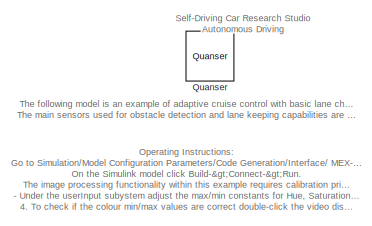
[diagram: root canvas - part 1/4, top left region]
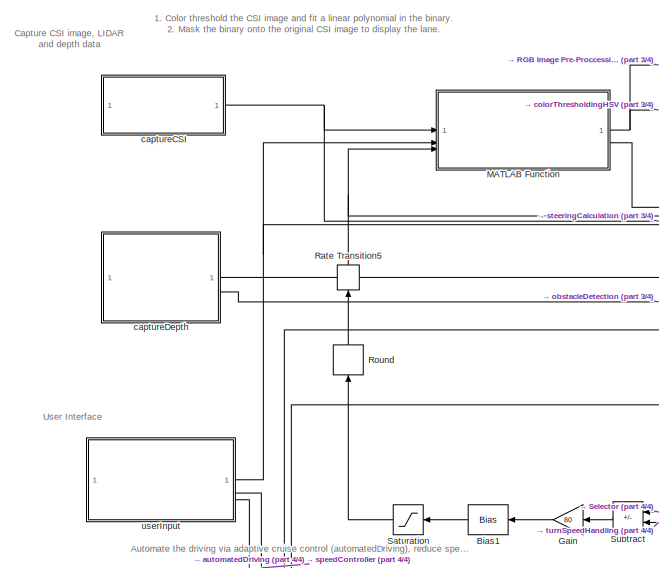
[diagram: root canvas - part 2/4, middle left region]
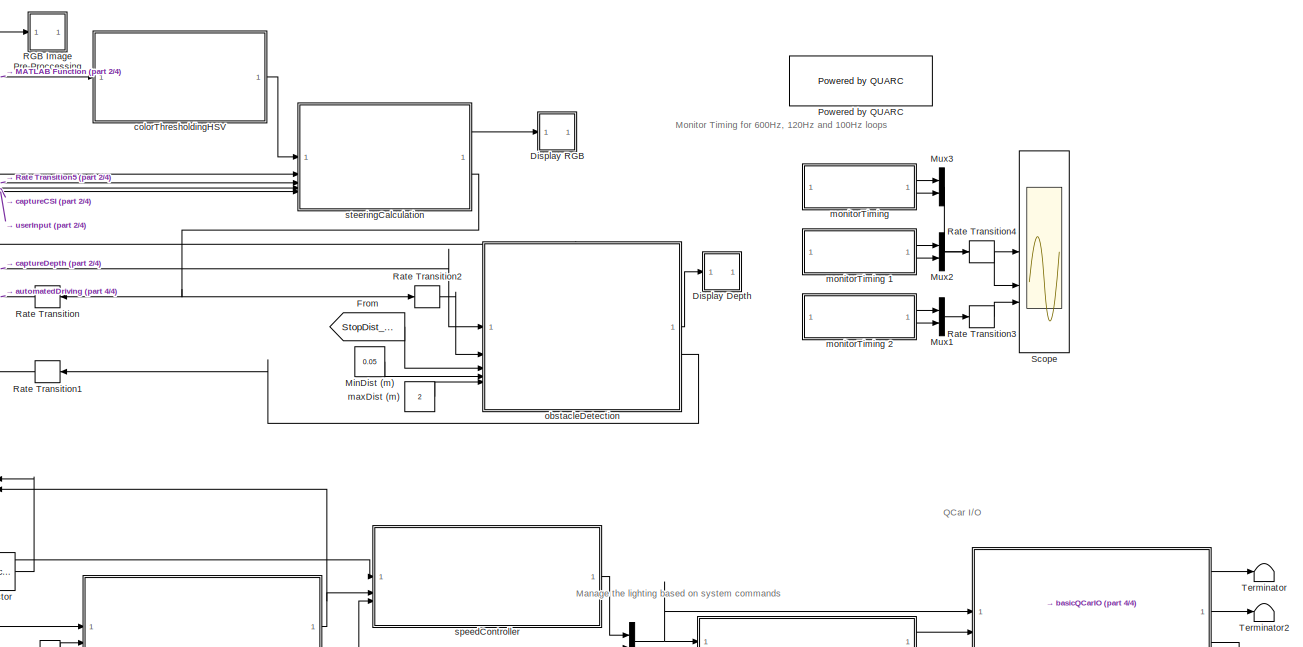
[diagram: root canvas - part 3/4, middle right region]
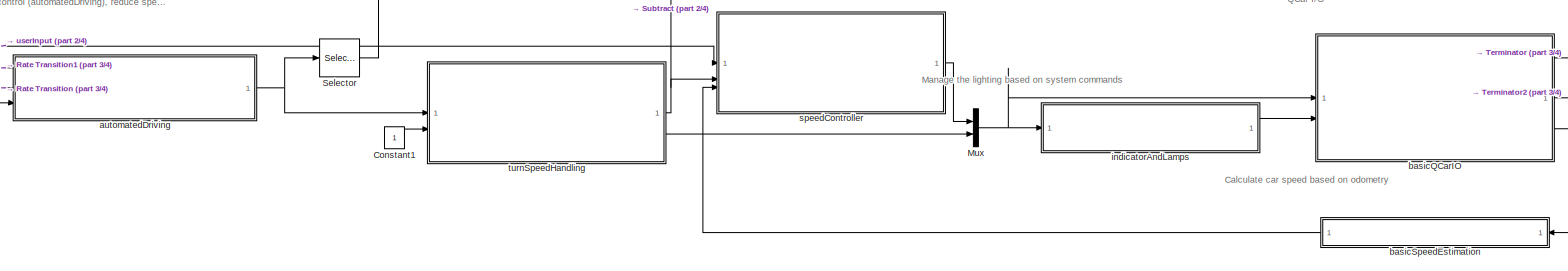
[diagram: root canvas - part 4/4, full width, bottom band]
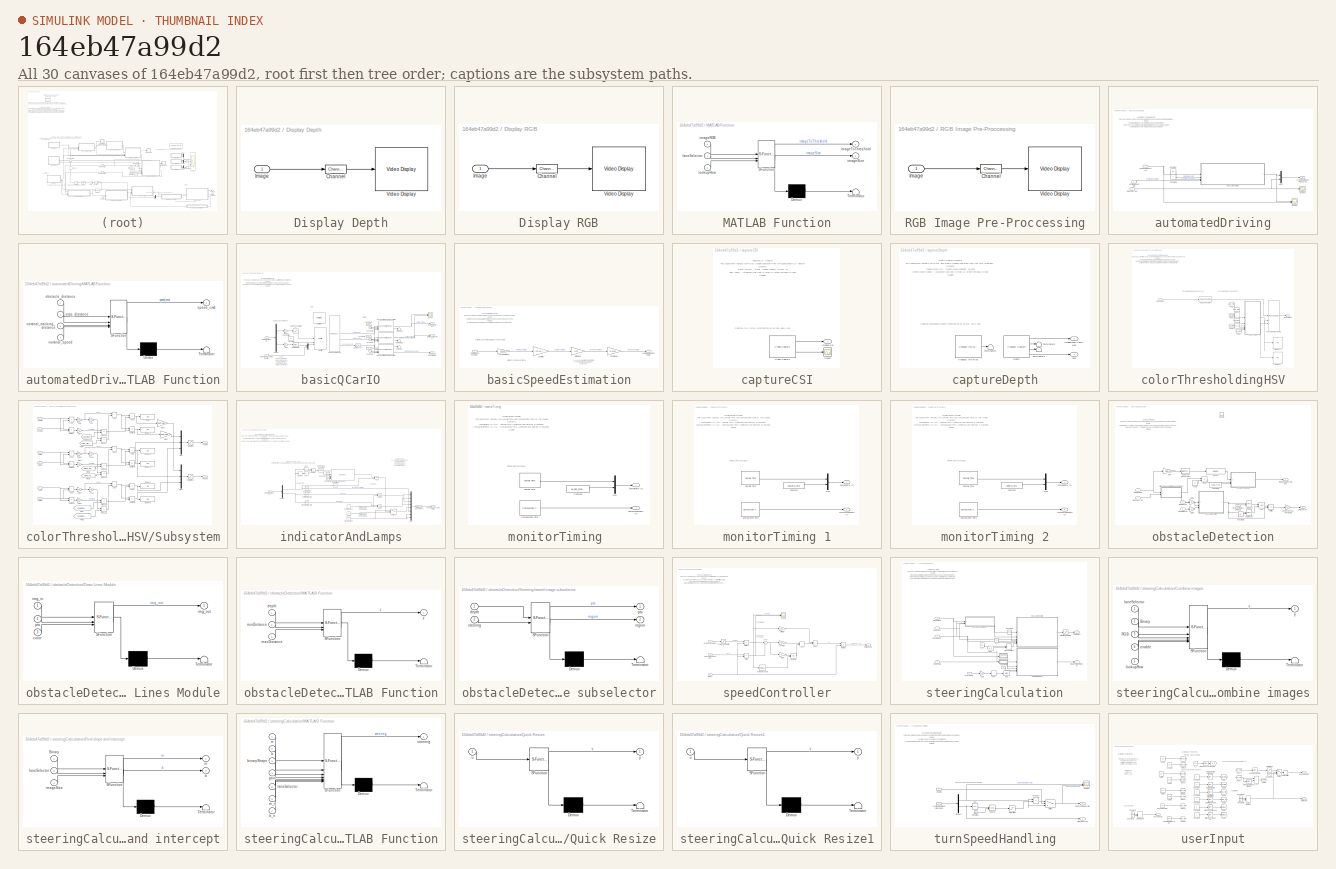
[diagram: thumbnail index - all 30 canvases of the model, root first then tree order]
MODEL slx_164eb47a99d2
KIND model
CONFIG AbsTol = auto
CONFIG EnableMultiTasking = on
CONFIG FixedStep = 1/100
CONFIG MaxStep = auto
CONFIG MinStep = auto
CONFIG RelTol = 1e-3
CONFIG SampleTimeConstraint = Unconstrained
CONFIG SolverName = ode2
CONFIG StartTime = 0.0
CONFIG StopTime = inf
WORKSPACE source: mxarray member
WORKSPACE camera_rate: Simulink.Parameter (value not decoded)
WORKSPACE depth_rate: Simulink.Parameter (value not decoded)
BLOCK [Bias] Bias1
  Bias = 220
  SaturateOnIntegerOverflow = off
BLOCK [Constant] Constant1
BLOCK [SubSystem] Display Depth
BLOCK [Reference] Display Depth/Channel  REF=quarc_library/Signal Routing/Channel
  SourceBlock = quarc_library/Signal Routing/Channel
  SourceProductName = QUARC Targets
  SourceType = Channel
BLOCK [Inport] Display Depth/Image
BLOCK [Reference] Display Depth/Video Display  REF=quarc_library/Multimedia/Video Display
  SourceBlock = quarc_library/Multimedia/Video Display
  SourceProductName = QUARC Targets
  SourceType = Video Display
  Tag = QCar1_autonomous_driving_car_example2/Display Depth/Video Display
  UserDataPersistent = on
BLOCK [SubSystem] Display RGB
BLOCK [Reference] Display RGB/Channel  REF=quarc_library/Signal Routing/Channel
  SourceBlock = quarc_library/Signal Routing/Channel
  SourceProductName = QUARC Targets
  SourceType = Channel
BLOCK [Inport] Display RGB/Image
BLOCK [Reference] Display RGB/Video Display  REF=quarc_library/Multimedia/Video Display
  SourceBlock = quarc_library/Multimedia/Video Display
  SourceProductName = QUARC Targets
  SourceType = Video Display
  Tag = QCar1_autonomous_driving_car_example2/Display RGB/Video Display
  UserDataPersistent = on
BLOCK [From] From
  GotoTag = StopDist_des
  TagVisibility = global
BLOCK [Gain] Gain
  Gain = 80
  NameLocation = top
BLOCK [SubSystem] MATLAB Function
  ErrorFcn = Stateflow.Translate.translate
  PermitHierarchicalResolution = ExplicitOnly
  SFBlockType = MATLAB Function
  TreatAsAtomicUnit = on
BLOCK [Demux] MATLAB Function/ Demux 
  Outputs = 1
BLOCK [S-Function] MATLAB Function/ SFunction 
  EnableBusSupport = on
  FunctionName = sf_sfun
  PortCounts = [3 3]
  SFcnIsStateOwnerBlock = off
  SFunctionDeploymentMode = off
  Tag = Stateflow S-Function 11
BLOCK [Terminator] MATLAB Function/ Terminator 
BLOCK [Inport] MATLAB Function/imageRGB
BLOCK [Outport] MATLAB Function/imageSize
  Port = 2
  VectorParamsAs1DForOutWhenUnconnected = off
BLOCK [Outport] MATLAB Function/imageToThreshold
  VectorParamsAs1DForOutWhenUnconnected = off
BLOCK [Inport] MATLAB Function/laneSelector
  Port = 2
BLOCK [Inport] MATLAB Function/lookupRow
  Port = 3
BLOCK [Constant] MinDist (m)
  Value = 0.05
BLOCK [Mux] Mux
  DisplayOption = bar
  Inputs = 2
BLOCK [Mux] Mux1
  DisplayOption = bar
  Inputs = 2
BLOCK [Mux] Mux2
  DisplayOption = bar
  Inputs = 2
BLOCK [Mux] Mux3
  DisplayOption = bar
  Inputs = 2
BLOCK [Reference] Powered by QUARC  REF=quarc_library/Logos/Powered by QUARC
  SourceBlock = quarc_library/Logos/Powered by QUARC
  SourceProductName = QUARC Targets
  SourceType = Powered by QUARC
BLOCK [Reference] Quanser  REF=quarc_library/Logos/Quanser
  SourceBlock = quarc_library/Logos/Quanser
  SourceProductName = QUARC Targets
  SourceType = Powered by Quanser
BLOCK [SubSystem] RGB Image Pre-Proccessing
BLOCK [Reference] RGB Image Pre-Proccessing/Channel  REF=quarc_library/Signal Routing/Channel
  SourceBlock = quarc_library/Signal Routing/Channel
  SourceProductName = QUARC Targets
  SourceType = Channel
BLOCK [Inport] RGB Image Pre-Proccessing/Image
BLOCK [Reference] RGB Image Pre-Proccessing/Video Display  REF=quarc_library/Multimedia/Video Display
  SourceBlock = quarc_library/Multimedia/Video Display
  SourceProductName = QUARC Targets
  SourceType = Video Display
  Tag = QCar1_autonomous_driving_car_example2/RGB Image \nPre-Proccessing/Video Display
  UserDataPersistent = on
BLOCK [RateTransition] Rate Transition
BLOCK [RateTransition] Rate Transition1
BLOCK [RateTransition] Rate Transition2
  Deterministic = off
BLOCK [RateTransition] Rate Transition3
  NameLocation = top
BLOCK [RateTransition] Rate Transition4
  NameLocation = top
BLOCK [RateTransition] Rate Transition5
  NameLocation = left
BLOCK [Rounding] Round
  NameLocation = right
  Operator = round
BLOCK [Saturate] Saturation
  LowerLimit = 220
  UpperLimit = 300
BLOCK [Scope] Scope
  Floating = off
  NumInputPorts = 3
  ScopeSpecificationString = Simulink.scopes.TimeScopeBlockCfg('CurrentConfiguration', extmgr.ConfigurationSet(extmgr.Configuration('Core','General UI',true),extmgr.Configuration('Core','Source UI',true),extmgr.Configuration('Sources','WiredSimulink',true,'DataLoggingVariableName','ScopeData1'),extmgr.Configuration('Visuals','Time Domain',true,'SerializedDisplays',{struct('MinYLimReal','-0.00084','MaxYLimReal','0.00516','YLab...<+2758ch>
BLOCK [Selector] Selector
  IndexOptions = Index vector (dialog)
  Indices = [1]
  InputPortWidth = 2
  OutputSizes = 1
BLOCK [Sum] Subtract
  IconShape = rectangular
  Inputs = +-
  NameLocation = top
BLOCK [Terminator] Terminator
BLOCK [Terminator] Terminator2
BLOCK [SubSystem] automatedDriving
BLOCK [Constant] automatedDriving/Constant
  Value = 0.4
BLOCK [Constant] automatedDriving/Constant2
BLOCK [SubSystem] automatedDriving/MATLAB Function
  ErrorFcn = Stateflow.Translate.translate
  PermitHierarchicalResolution = ExplicitOnly
  SFBlockType = MATLAB Function
  TreatAsAtomicUnit = on
BLOCK [Demux] automatedDriving/MATLAB Function/ Demux 
  Outputs = 1
BLOCK [S-Function] automatedDriving/MATLAB Function/ SFunction 
  EnableBusSupport = on
  FunctionName = sf_sfun
  PortCounts = [4 2]
  SFcnIsStateOwnerBlock = off
  SFunctionDeploymentMode = off
  Tag = Stateflow S-Function 10
BLOCK [Terminator] automatedDriving/MATLAB Function/ Terminator 
BLOCK [Inport] automatedDriving/MATLAB Function/nominal_speed
  Port = 4
BLOCK [Inport] automatedDriving/MATLAB Function/nominal_tracking_distance
  Port = 3
BLOCK [Inport] automatedDriving/MATLAB Function/obstacle_distance
BLOCK [Outport] automatedDriving/MATLAB Function/speed_cmd
  VectorParamsAs1DForOutWhenUnconnected = off
BLOCK [Inport] automatedDriving/MATLAB Function/stop_distance
  Port = 2
BLOCK [Mux] automatedDriving/Mux1
  DisplayOption = bar
  Inputs = 2
BLOCK [Scope] automatedDriving/Scope
  Floating = off
  NumInputPorts = 2
  ScopeSpecificationString = Simulink.scopes.TimeScopeBlockCfg('CurrentConfiguration', extmgr.ConfigurationSet(extmgr.Configuration('Core','General UI',true),extmgr.Configuration('Core','Source UI',true),extmgr.Configuration('Sources','WiredSimulink',true,'DataLoggingVariableName','ScopeData1'),extmgr.Configuration('Visuals','Time Domain',true,'SerializedDisplays',{struct('MinYLimReal','-0.06597','MaxYLimReal','1.21757','YLab...<+1434ch>
BLOCK [Scope] automatedDriving/Scope2
  Floating = off
  NumInputPorts = 1
  ScopeSpecificationString = Simulink.scopes.TimeScopeBlockCfg('CurrentConfiguration', extmgr.ConfigurationSet(extmgr.Configuration('Core','General UI',true),extmgr.Configuration('Core','Source UI',true),extmgr.Configuration('Sources','WiredSimulink',true,'DataLoggingVariableName','ScopeData2'),extmgr.Configuration('Visuals','Time Domain',true,'SerializedDisplays',{struct('MinYLimReal','-0.625','MaxYLimReal','0.625','YLabelRe...<+1418ch>
BLOCK [Inport] automatedDriving/nominalSpeed (m//s)
  Port = 3
BLOCK [Inport] automatedDriving/obstacleDistance (m)
BLOCK [Inport] automatedDriving/steering (rad)
  Port = 2
BLOCK [Outport] automatedDriving/systemCommand (m//s, rad) [2]
  VectorParamsAs1DForOutWhenUnconnected = off
BLOCK [SubSystem] basicQCarIO
BLOCK [Constant] basicQCarIO/Constant1
BLOCK [Constant] basicQCarIO/Constant2
  Value = 25
BLOCK [Constant] basicQCarIO/Constant3
BLOCK [Constant] basicQCarIO/Constant4
  Value = 100
BLOCK [Constant] basicQCarIO/Constant5
BLOCK [Constant] basicQCarIO/Constant6
  Value = 100
BLOCK [Demux] basicQCarIO/Demux
  Outputs = 2
BLOCK [Gain] basicQCarIO/Gain
  Gain = -1
BLOCK [Reference] basicQCarIO/HIL Initialize  REF=quarc_library/Data Acquisition/Generic/Configuration/HIL Initialize
  AttributesFormatString = %<object_name> (%<board_type>-%<board_number>)
  SourceBlock = quarc_library/Data Acquisition/Generic/Configuration/HIL Initialize
  SourceProductName = QUARC Targets
  SourceType = HIL Initialize
  UserDataPersistent = on
BLOCK [Reference] basicQCarIO/HIL Read Timebase  REF=quarc_library/Data Acquisition/Generic/Timebases/HIL Read
Timebase
  AttributesFormatString = (%<object_name>)
  SourceBlock = quarc_library/Data Acquisition/Generic/Timebases/HIL Read\nTimebase
  SourceProductName = QUARC Targets
  SourceType = HIL Read Timebase
  UserDataPersistent = on
BLOCK [Reference] basicQCarIO/HIL Write  REF=quarc_library/Data Acquisition/Generic/Immediate I//O/HIL Write
  AttributesFormatString = (%<object_name>)
  SourceBlock = quarc_library/Data Acquisition/Generic/Immediate I//O/HIL Write
  SourceProductName = QUARC Targets
  SourceType = HIL Write
  UserDataPersistent = on
BLOCK [Mux] basicQCarIO/Mux
  DisplayOption = bar
  Inputs = 2
BLOCK [Scope] basicQCarIO/Scope
  Floating = off
  NumInputPorts = 2
  ScopeSpecificationString = Simulink.scopes.TimeScopeBlockCfg('CurrentConfiguration', extmgr.ConfigurationSet(extmgr.Configuration('Core','General UI',true),extmgr.Configuration('Core','Source UI',true),extmgr.Configuration('Sources','WiredSimulink',true,'DataLoggingVariableName','ScopeData4'),extmgr.Configuration('Visuals','Time Domain',true,'SerializedDisplays',{struct('MinYLimReal','-1.03564','MaxYLimReal','12.37845','YLa...<+1450ch>
BLOCK [Reference] basicQCarIO/Second-Order Low-Pass Filter  REF=quarc_library/Continuous/Second-Order
Low-Pass Filter
  SourceBlock = quarc_library/Continuous/Second-Order\nLow-Pass Filter
  SourceProductName = QUARC Targets
  SourceType = Second-Order Low-Pass Filter
BLOCK [Reference] basicQCarIO/Second-Order Low-Pass Filter1  REF=quarc_library/Continuous/Second-Order
Low-Pass Filter
  SourceBlock = quarc_library/Continuous/Second-Order\nLow-Pass Filter
  SourceProductName = QUARC Targets
  SourceType = Second-Order Low-Pass Filter
BLOCK [Reference] basicQCarIO/Second-Order Low-Pass Filter2  REF=quarc_library/Continuous/Second-Order
Low-Pass Filter
  SourceBlock = quarc_library/Continuous/Second-Order\nLow-Pass Filter
  SourceProductName = QUARC Targets
  SourceType = Second-Order Low-Pass Filter
BLOCK [Bias] basicQCarIO/Steering Bias
  Bias = 0.0
  SaturateOnIntegerOverflow = off
BLOCK [Terminator] basicQCarIO/Terminator
BLOCK [Terminator] basicQCarIO/Terminator1
BLOCK [Terminator] basicQCarIO/Terminator2
BLOCK [Reference] basicQCarIO/Unwrap 2^24  REF=quarc_library/Discontinuities/Inverse
Modulus
  SourceBlock = quarc_library/Discontinuities/Inverse\nModulus
  SourceProductName = QUARC Targets
  SourceType = Inverse Modulus
BLOCK [Outport] basicQCarIO/batteryVoltage (V) [1]
  Port = 2
  VectorParamsAs1DForOutWhenUnconnected = off
BLOCK [Constant] basicQCarIO/coast ON
  Value = 0
BLOCK [Saturate] basicQCarIO/command saturation
  LowerLimit = -0.25
  NameLocation = top
  UpperLimit = 0.25
BLOCK [Gain] basicQCarIO/direction convention
  Gain = -1
  NameLocation = top
BLOCK [Inport] basicQCarIO/indicatorAndLamps (bool) [8]
  Port = 2
BLOCK [Inport] basicQCarIO/motorCmd (%, rad) [2]
BLOCK [Outport] basicQCarIO/motorCurrent (A) [1]
  VectorParamsAs1DForOutWhenUnconnected = off
BLOCK [Outport] basicQCarIO/motorSpeed (counts//s) [1]
  Port = 3
  VectorParamsAs1DForOutWhenUnconnected = off
BLOCK [SubSystem] basicSpeedEstimation
  NameLocation = top
BLOCK [Gain] basicSpeedEstimation/counts to rotations
  Gain = 1/720/4
BLOCK [Gain] basicSpeedEstimation/gear ratios
  Gain = (13*19)/(70*37)
BLOCK [Outport] basicSpeedEstimation/longitudinalCarSpeed (m//s)
  VectorParamsAs1DForOutWhenUnconnected = off
BLOCK [Inport] basicSpeedEstimation/motorSpeed (counts//s)
BLOCK [Gain] basicSpeedEstimation/rot//s to rad//s
  Gain = 2*pi
BLOCK [Gain] basicSpeedEstimation/wheel radius
  Gain = 0.0342
BLOCK [SubSystem] captureCSI
BLOCK [Scope] captureCSI/Scope
  Floating = off
  NumInputPorts = 1
  ScopeSpecificationString = Simulink.scopes.TimeScopeBlockCfg('CurrentConfiguration', extmgr.ConfigurationSet(extmgr.Configuration('Core','General UI',true),extmgr.Configuration('Core','Source UI',true),extmgr.Configuration('Sources','WiredSimulink',true,'DataLoggingVariableName','ScopeData3'),extmgr.Configuration('Visuals','Time Domain',true,'SerializedDisplays',{struct('MinYLimReal','-0.125','MaxYLimReal','1.125','YLabelRe...<+1433ch>
BLOCK [Reference] captureCSI/Video Capture  REF=quarc_library/Multimedia/Video Capture
  SourceBlock = quarc_library/Multimedia/Video Capture
  SourceProductName = QUARC Targets
  SourceType = Video Capture
BLOCK [Outport] captureCSI/imageRGB
  VectorParamsAs1DForOutWhenUnconnected = off
BLOCK [SubSystem] captureDepth
BLOCK [Reference] captureDepth/Depth  REF=quarc_library/Multimedia/Video3D Capture
  SourceBlock = quarc_library/Multimedia/Video3D Capture
  SourceProductName = QUARC Targets
  SourceType = Video3D Capture
  UserDataPersistent = on
BLOCK [Terminator] captureDepth/Terminator2
BLOCK [Terminator] captureDepth/Terminator3
BLOCK [Terminator] captureDepth/Terminator4
BLOCK [Reference] captureDepth/Video3D Initialize  REF=quarc_library/Multimedia/Video3D Initialize
  SourceBlock = quarc_library/Multimedia/Video3D Initialize
  SourceProductName = QUARC Targets
  SourceType = Video3D Initialize
BLOCK [Outport] captureDepth/imageDepth [360 x 640]
  Port = 2
  VectorParamsAs1DForOutWhenUnconnected = off
BLOCK [Outport] captureDepth/new
  VectorParamsAs1DForOutWhenUnconnected = off
BLOCK [SubSystem] colorThresholdingHSV
  NameLocation = top
BLOCK [Display] colorThresholdingHSV/Display1
  Decimation = 1
BLOCK [Display] colorThresholdingHSV/Display2
  Decimation = 1
BLOCK [From] colorThresholdingHSV/From1
  GotoTag = Hue_Min
  TagVisibility = global
BLOCK [From] colorThresholdingHSV/From2
  GotoTag = Hue_Max
  TagVisibility = global
BLOCK [From] colorThresholdingHSV/From3
  GotoTag = Sat_Min
  TagVisibility = global
BLOCK [From] colorThresholdingHSV/From4
  GotoTag = Sat_Max
  TagVisibility = global
BLOCK [From] colorThresholdingHSV/From5
  GotoTag = Val_Min
  TagVisibility = global
BLOCK [From] colorThresholdingHSV/From6
  GotoTag = Val_Max
  TagVisibility = global
BLOCK [Reference] colorThresholdingHSV/HSV Color Thresholding  REF=quarc_library/Image Processing/Generic/Image Compare
  SourceBlock = quarc_library/Image Processing/Generic/Image Compare
  SourceProductName = QUARC Targets
  SourceType = Image Compare
BLOCK [Reference] colorThresholdingHSV/Image Transform  REF=quarc_library/Image Processing/Generic/Image Transform
  AttributesFormatString = (%<algorithm>)
  NameLocation = top
  SourceBlock = quarc_library/Image Processing/Generic/Image Transform
  SourceProductName = QUARC Targets
  SourceType = Image Transform
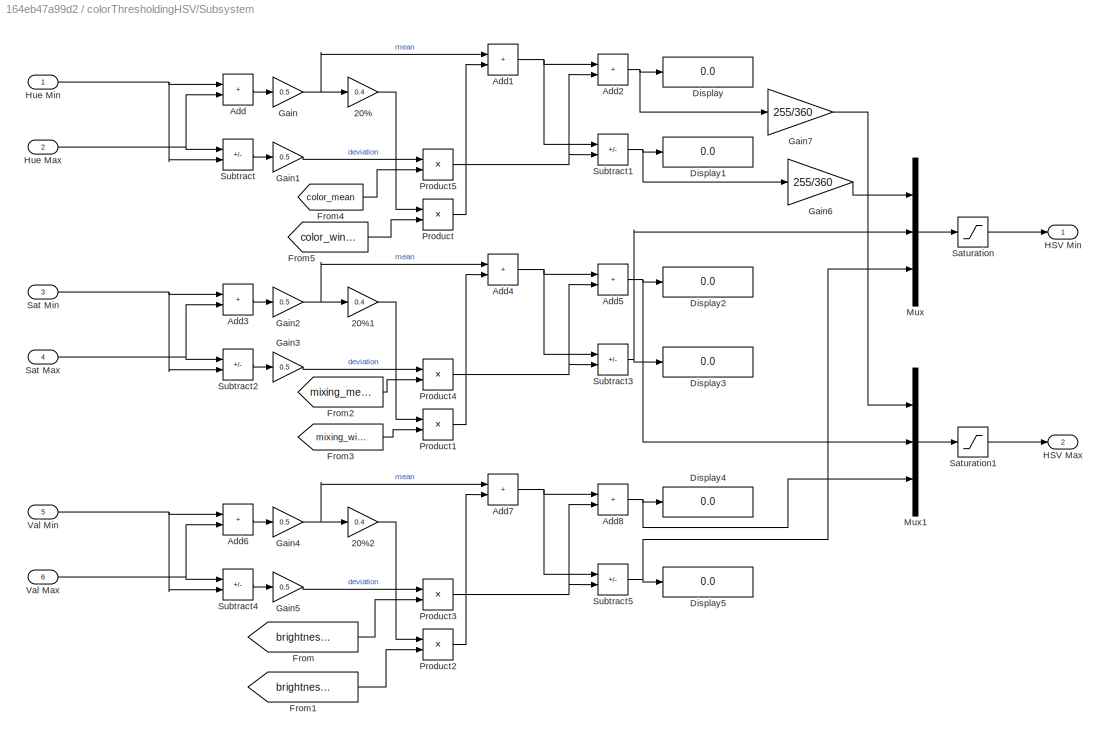
BLOCK [SubSystem] colorThresholdingHSV/Subsystem
BLOCK [Gain] colorThresholdingHSV/Subsystem/20%
  Gain = 0.4
BLOCK [Gain] colorThresholdingHSV/Subsystem/20%1
  Gain = 0.4
BLOCK [Gain] colorThresholdingHSV/Subsystem/20%2
  Gain = 0.4
BLOCK [Sum] colorThresholdingHSV/Subsystem/Add
  IconShape = rectangular
BLOCK [Sum] colorThresholdingHSV/Subsystem/Add1
  IconShape = rectangular
BLOCK [Sum] colorThresholdingHSV/Subsystem/Add2
  IconShape = rectangular
BLOCK [Sum] colorThresholdingHSV/Subsystem/Add3
  IconShape = rectangular
BLOCK [Sum] colorThresholdingHSV/Subsystem/Add4
  IconShape = rectangular
BLOCK [Sum] colorThresholdingHSV/Subsystem/Add5
  IconShape = rectangular
BLOCK [Sum] colorThresholdingHSV/Subsystem/Add6
  IconShape = rectangular
BLOCK [Sum] colorThresholdingHSV/Subsystem/Add7
  IconShape = rectangular
BLOCK [Sum] colorThresholdingHSV/Subsystem/Add8
  IconShape = rectangular
BLOCK [Display] colorThresholdingHSV/Subsystem/Display
  Decimation = 1
BLOCK [Display] colorThresholdingHSV/Subsystem/Display1
  Decimation = 1
BLOCK [Display] colorThresholdingHSV/Subsystem/Display2
  Decimation = 1
BLOCK [Display] colorThresholdingHSV/Subsystem/Display3
  Decimation = 1
BLOCK [Display] colorThresholdingHSV/Subsystem/Display4
  Decimation = 1
BLOCK [Display] colorThresholdingHSV/Subsystem/Display5
  Decimation = 1
BLOCK [From] colorThresholdingHSV/Subsystem/From
  GotoTag = brightness_mean
  TagVisibility = global
BLOCK [From] colorThresholdingHSV/Subsystem/From1
  GotoTag = brightness_window
  TagVisibility = global
BLOCK [From] colorThresholdingHSV/Subsystem/From2
  GotoTag = mixing_mean
  TagVisibility = global
BLOCK [From] colorThresholdingHSV/Subsystem/From3
  GotoTag = mixing_window
  TagVisibility = global
BLOCK [From] colorThresholdingHSV/Subsystem/From4
  GotoTag = color_mean
  TagVisibility = global
BLOCK [From] colorThresholdingHSV/Subsystem/From5
  GotoTag = color_window
  TagVisibility = global
BLOCK [Gain] colorThresholdingHSV/Subsystem/Gain
  Gain = 0.5
BLOCK [Gain] colorThresholdingHSV/Subsystem/Gain1
  Gain = 0.5
BLOCK [Gain] colorThresholdingHSV/Subsystem/Gain2
  Gain = 0.5
BLOCK [Gain] colorThresholdingHSV/Subsystem/Gain3
  Gain = 0.5
BLOCK [Gain] colorThresholdingHSV/Subsystem/Gain4
  Gain = 0.5
BLOCK [Gain] colorThresholdingHSV/Subsystem/Gain5
  Gain = 0.5
BLOCK [Gain] colorThresholdingHSV/Subsystem/Gain6
  Gain = 255/360
BLOCK [Gain] colorThresholdingHSV/Subsystem/Gain7
  Gain = 255/360
BLOCK [Outport] colorThresholdingHSV/Subsystem/HSV Max
  Port = 2
  VectorParamsAs1DForOutWhenUnconnected = off
BLOCK [Outport] colorThresholdingHSV/Subsystem/HSV Min
  VectorParamsAs1DForOutWhenUnconnected = off
BLOCK [Inport] colorThresholdingHSV/Subsystem/Hue Max
  Port = 2
BLOCK [Inport] colorThresholdingHSV/Subsystem/Hue Min
BLOCK [Mux] colorThresholdingHSV/Subsystem/Mux
  DisplayOption = bar
  Inputs = 3
BLOCK [Mux] colorThresholdingHSV/Subsystem/Mux1
  DisplayOption = bar
  Inputs = 3
BLOCK [Product] colorThresholdingHSV/Subsystem/Product
BLOCK [Product] colorThresholdingHSV/Subsystem/Product1
BLOCK [Product] colorThresholdingHSV/Subsystem/Product2
BLOCK [Product] colorThresholdingHSV/Subsystem/Product3
BLOCK [Product] colorThresholdingHSV/Subsystem/Product4
BLOCK [Product] colorThresholdingHSV/Subsystem/Product5
BLOCK [Inport] colorThresholdingHSV/Subsystem/Sat Max
  Port = 4
BLOCK [Inport] colorThresholdingHSV/Subsystem/Sat Min
  Port = 3
BLOCK [Saturate] colorThresholdingHSV/Subsystem/Saturation
  LowerLimit = [0 0 0]
  UpperLimit = [255 255 255]
BLOCK [Saturate] colorThresholdingHSV/Subsystem/Saturation1
  LowerLimit = [0 0 0]
  UpperLimit = [255 255 255]
BLOCK [Sum] colorThresholdingHSV/Subsystem/Subtract
  IconShape = rectangular
  Inputs = +-
BLOCK [Sum] colorThresholdingHSV/Subsystem/Subtract1
  IconShape = rectangular
  Inputs = +-
BLOCK [Sum] colorThresholdingHSV/Subsystem/Subtract2
  IconShape = rectangular
  Inputs = +-
BLOCK [Sum] colorThresholdingHSV/Subsystem/Subtract3
  IconShape = rectangular
  Inputs = +-
BLOCK [Sum] colorThresholdingHSV/Subsystem/Subtract4
  IconShape = rectangular
  Inputs = +-
BLOCK [Sum] colorThresholdingHSV/Subsystem/Subtract5
  IconShape = rectangular
  Inputs = +-
BLOCK [Inport] colorThresholdingHSV/Subsystem/Val Max
  Port = 6
BLOCK [Inport] colorThresholdingHSV/Subsystem/Val Min
  Port = 5
BLOCK [Outport] colorThresholdingHSV/imageBinary
  VectorParamsAs1DForOutWhenUnconnected = off
BLOCK [Inport] colorThresholdingHSV/imageRGB
BLOCK [SubSystem] indicatorAndLamps
BLOCK [Logic] indicatorAndLamps/AND1
  AllPortsSameDT = off
  IconShape = distinctive
  OutDataTypeStr = boolean
BLOCK [Logic] indicatorAndLamps/AND2
  AllPortsSameDT = off
  IconShape = distinctive
  Operator = OR
  OutDataTypeStr = boolean
BLOCK [Logic] indicatorAndLamps/AND3
  AllPortsSameDT = off
  IconShape = distinctive
  OutDataTypeStr = boolean
BLOCK [Abs] indicatorAndLamps/Abs
  SaturateOnIntegerOverflow = off
BLOCK [Abs] indicatorAndLamps/Abs1
  SaturateOnIntegerOverflow = off
BLOCK [Reference] indicatorAndLamps/Compare To Constant1  REF=simulink/Logic and Bit
Operations/Compare
To Constant
  SourceBlock = simulink/Logic and Bit\nOperations/Compare\nTo Constant
  SourceType = Compare To Constant
BLOCK [Reference] indicatorAndLamps/Compare To Constant2  REF=simulink/Logic and Bit
Operations/Compare
To Constant
  SourceBlock = simulink/Logic and Bit\nOperations/Compare\nTo Constant
  SourceType = Compare To Constant
BLOCK [Reference] indicatorAndLamps/Compare To Constant3  REF=simulink/Logic and Bit
Operations/Compare
To Constant
  SourceBlock = simulink/Logic and Bit\nOperations/Compare\nTo Constant
  SourceType = Compare To Constant
BLOCK [Constant] indicatorAndLamps/Constant
  Value = 0
BLOCK [Constant] indicatorAndLamps/Constant1
BLOCK [Constant] indicatorAndLamps/Constant2
  Value = 5
BLOCK [DataTypeConversion] indicatorAndLamps/Data Type Conversion
  RndMeth = Floor
  SaturateOnIntegerOverflow = off
BLOCK [DataTypeConversion] indicatorAndLamps/Data Type Conversion1
  RndMeth = Floor
  SaturateOnIntegerOverflow = off
BLOCK [DataTypeConversion] indicatorAndLamps/Data Type Conversion2
  RndMeth = Floor
  SaturateOnIntegerOverflow = off
BLOCK [Demux] indicatorAndLamps/Demux
  Outputs = 2
BLOCK [Reference] indicatorAndLamps/Left Steering Limit  REF=simulink/Logic and Bit
Operations/Compare
To Constant
  SourceBlock = simulink/Logic and Bit\nOperations/Compare\nTo Constant
  SourceType = Compare To Constant
BLOCK [Constant] indicatorAndLamps/Light Off
  OutDataTypeStr = boolean
  Value = 0
BLOCK [Memory] indicatorAndLamps/Memory
BLOCK [Mux] indicatorAndLamps/Mux
  DisplayOption = bar
  Inputs = 8
BLOCK [Reference] indicatorAndLamps/One Shot  REF=quarc_library/Discontinuities/One Shot
  SourceBlock = quarc_library/Discontinuities/One Shot
  SourceProductName = QUARC Targets
  SourceType = One Shot
BLOCK [DiscretePulseGenerator] indicatorAndLamps/Pulsing Light
  Period = 0.5/qc_get_step_size
  PulseWidth = 0.5/2/qc_get_step_size
  SampleTime = qc_get_step_size
BLOCK [Reference] indicatorAndLamps/Right Steering Limit  REF=simulink/Logic and Bit
Operations/Compare
To Constant
  SourceBlock = simulink/Logic and Bit\nOperations/Compare\nTo Constant
  SourceType = Compare To Constant
BLOCK [Constant] indicatorAndLamps/Steady Light
  OutDataTypeStr = boolean
BLOCK [Sum] indicatorAndLamps/Subtract
  IconShape = rectangular
  Inputs = +-
BLOCK [Switch] indicatorAndLamps/Switch2
  Criteria = u2 > Threshold
  InputSameDT = off
  SaturateOnIntegerOverflow = off
BLOCK [Outport] indicatorAndLamps/indicatorsAndLamps (%) [8]
  VectorParamsAs1DForOutWhenUnconnected = off
BLOCK [Inport] indicatorAndLamps/motorCmd (%, rad) [2]
BLOCK [Constant] maxDist (m)
  Value = 2
BLOCK [SubSystem] monitorTiming 
BLOCK [Reference] monitorTiming /Computation Time  REF=quarc_library/Sources/Time/Computation Time
  SourceBlock = quarc_library/Sources/Time/Computation Time
  SourceProductName = QUARC Targets
  SourceType = Computation Time
BLOCK [Constant] monitorTiming /Constant
  SampleTime = -1
  Value = qc_get_step_size
BLOCK [Mux] monitorTiming /Mux
  DisplayOption = bar
  Inputs = 2
BLOCK [Reference] monitorTiming /Sample Time  REF=quarc_library/Sources/Time/Sample Time
  Priority = -99
  SourceBlock = quarc_library/Sources/Time/Sample Time
  SourceProductName = QUARC Targets
  SourceType = Sample Time
BLOCK [Outport] monitorTiming /computationTime (s)
  Port = 2
  VectorParamsAs1DForOutWhenUnconnected = off
BLOCK [Outport] monitorTiming /sampleTime (s)
  VectorParamsAs1DForOutWhenUnconnected = off
BLOCK [SubSystem] monitorTiming 1
BLOCK [Reference] monitorTiming 1/Computation Time  REF=quarc_library/Sources/Time/Computation Time
  SourceBlock = quarc_library/Sources/Time/Computation Time
  SourceProductName = QUARC Targets
  SourceType = Computation Time
BLOCK [Constant] monitorTiming 1/Constant
  SampleTime = camera_rate
  Value = camera_rate
BLOCK [Mux] monitorTiming 1/Mux
  DisplayOption = bar
  Inputs = 2
BLOCK [Reference] monitorTiming 1/Sample Time  REF=quarc_library/Sources/Time/Sample Time
  Priority = -99
  SourceBlock = quarc_library/Sources/Time/Sample Time
  SourceProductName = QUARC Targets
  SourceType = Sample Time
BLOCK [Outport] monitorTiming 1/computationTime (s)
  Port = 2
  VectorParamsAs1DForOutWhenUnconnected = off
BLOCK [Outport] monitorTiming 1/sampleTime (s)
  VectorParamsAs1DForOutWhenUnconnected = off
BLOCK [SubSystem] monitorTiming 2
BLOCK [Reference] monitorTiming 2/Computation Time  REF=quarc_library/Sources/Time/Computation Time
  SourceBlock = quarc_library/Sources/Time/Computation Time
  SourceProductName = QUARC Targets
  SourceType = Computation Time
BLOCK [Constant] monitorTiming 2/Constant
  SampleTime = depth_rate
  Value = depth_rate
BLOCK [Mux] monitorTiming 2/Mux
  DisplayOption = bar
  Inputs = 2
BLOCK [Reference] monitorTiming 2/Sample Time  REF=quarc_library/Sources/Time/Sample Time
  Priority = -99
  SourceBlock = quarc_library/Sources/Time/Sample Time
  SourceProductName = QUARC Targets
  SourceType = Sample Time
BLOCK [Outport] monitorTiming 2/computationTime (s)
  Port = 2
  VectorParamsAs1DForOutWhenUnconnected = off
BLOCK [Outport] monitorTiming 2/sampleTime (s)
  VectorParamsAs1DForOutWhenUnconnected = off
BLOCK [SubSystem] obstacleDetection
BLOCK [Logic] obstacleDetection/AND
  AllPortsSameDT = off
  OutDataTypeStr = boolean
BLOCK [Reference] obstacleDetection/Compare  REF=quarc_library/Logic Operations/Compare
  SourceBlock = quarc_library/Logic Operations/Compare
  SourceProductName = QUARC Targets
  SourceType = Compare
BLOCK [Reference] obstacleDetection/Compare1  REF=quarc_library/Logic Operations/Compare
  SourceBlock = quarc_library/Logic Operations/Compare
  SourceProductName = QUARC Targets
  SourceType = Compare
BLOCK [Constant] obstacleDetection/Constant2
  Value = Inf
BLOCK [Constant] obstacleDetection/Constant3
  Value = [255 0 0]
BLOCK [Gain] obstacleDetection/Convert ro real world units
  Gain = 0.1
BLOCK [DataTypeConversion] obstacleDetection/Data Type Conversion
  NameLocation = top
  OutDataTypeStr = uint8
  RndMeth = Floor
  SaturateOnIntegerOverflow = off
BLOCK [Inport] obstacleDetection/Desired Stoping Distance
  Port = 3
BLOCK [Product] obstacleDetection/Divide
  Inputs = */
  OutDataTypeStr = Inherit: Inherit via back propagation
BLOCK [SubSystem] obstacleDetection/Draw Lines Module
  ErrorFcn = Stateflow.Translate.translate
  PermitHierarchicalResolution = ExplicitOnly
  SFBlockType = MATLAB Function
  TreatAsAtomicUnit = on
BLOCK [Demux] obstacleDetection/Draw Lines Module/ Demux 
  Outputs = 1
BLOCK [S-Function] obstacleDetection/Draw Lines Module/ SFunction 
  EnableBusSupport = on
  FunctionName = sf_sfun
  PortCounts = [3 2]
  SFcnIsStateOwnerBlock = off
  SFunctionDeploymentMode = off
  Tag = Stateflow S-Function 1
BLOCK [Terminator] obstacleDetection/Draw Lines Module/ Terminator 
BLOCK [Inport] obstacleDetection/Draw Lines Module/color
  Port = 3
BLOCK [Inport] obstacleDetection/Draw Lines Module/img_in
BLOCK [Outport] obstacleDetection/Draw Lines Module/img_out
  VectorParamsAs1DForOutWhenUnconnected = off
BLOCK [Inport] obstacleDetection/Draw Lines Module/pts
  Port = 2
BLOCK [EnablePort] obstacleDetection/Enable
  PropagateVarSize = During execution
BLOCK [Gain] obstacleDetection/Gain
  Gain = 255/10
  NameLocation = top
BLOCK [Gain] obstacleDetection/Gain1
  Gain = 10
BLOCK [Gain] obstacleDetection/Gain2
  Gain = 10
BLOCK [SubSystem] obstacleDetection/MATLAB Function
  ErrorFcn = Stateflow.Translate.translate
  PermitHierarchicalResolution = ExplicitOnly
  SFBlockType = MATLAB Function
  TreatAsAtomicUnit = on
BLOCK [Demux] obstacleDetection/MATLAB Function/ Demux 
  Outputs = 1
BLOCK [S-Function] obstacleDetection/MATLAB Function/ SFunction 
  EnableBusSupport = on
  FunctionName = sf_sfun
  PortCounts = [3 2]
  SFcnIsStateOwnerBlock = off
  SFunctionDeploymentMode = off
  Tag = Stateflow S-Function 7
BLOCK [Terminator] obstacleDetection/MATLAB Function/ Terminator 
BLOCK [Inport] obstacleDetection/MATLAB Function/depth
BLOCK [Inport] obstacleDetection/MATLAB Function/maxDistance
  Port = 3
BLOCK [Inport] obstacleDetection/MATLAB Function/minDistance
  Port = 2
BLOCK [Outport] obstacleDetection/MATLAB Function/y
  VectorParamsAs1DForOutWhenUnconnected = off
BLOCK [Inport] obstacleDetection/MaxDistance
  Port = 5
BLOCK [Inport] obstacleDetection/MinDistance
  Port = 4
BLOCK [Product] obstacleDetection/Multiply
BLOCK [Selector] obstacleDetection/Selector
  IndexOptions = Index vector (dialog),Index vector (dialog)
  Indices = [1:3:360],[1:3:640]
  InputPortWidth = 3
  NumberOfDimensions = 2
  OutputSizes = 1,1
BLOCK [SubSystem] obstacleDetection/Steering based image subselector
  ErrorFcn = Stateflow.Translate.translate
  PermitHierarchicalResolution = ExplicitOnly
  SFBlockType = MATLAB Function
  TreatAsAtomicUnit = on
BLOCK [Demux] obstacleDetection/Steering based image subselector/ Demux 
  Outputs = 1
BLOCK [S-Function] obstacleDetection/Steering based image subselector/ SFunction 
  EnableBusSupport = on
  FunctionName = sf_sfun
  PortCounts = [2 3]
  SFcnIsStateOwnerBlock = off
  SFunctionDeploymentMode = off
  Tag = Stateflow S-Function 8
BLOCK [Terminator] obstacleDetection/Steering based image subselector/ Terminator 
BLOCK [Inport] obstacleDetection/Steering based image subselector/depth
BLOCK [Outport] obstacleDetection/Steering based image subselector/pts
  VectorParamsAs1DForOutWhenUnconnected = off
BLOCK [Outport] obstacleDetection/Steering based image subselector/region
  Port = 2
  VectorParamsAs1DForOutWhenUnconnected = off
BLOCK [Inport] obstacleDetection/Steering based image subselector/steering
  Port = 2
BLOCK [Outport] obstacleDetection/distance (m)
  Port = 2
  VectorParamsAs1DForOutWhenUnconnected = off
BLOCK [Inport] obstacleDetection/imageDepth
BLOCK [Outport] obstacleDetection/imageDepthForDisplay
  VectorParamsAs1DForOutWhenUnconnected = off
BLOCK [Constant] obstacleDetection/scale
  Value = 3
BLOCK [Inport] obstacleDetection/steering (rad)
  Port = 2
BLOCK [SubSystem] speedController
BLOCK [Sum] speedController/Add
  IconShape = rectangular
BLOCK [Sum] speedController/Add1
  IconShape = rectangular
BLOCK [Reference] speedController/Compare To Zero  REF=simulink/Logic and Bit
Operations/Compare
To Zero
  SourceBlock = simulink/Logic and Bit\nOperations/Compare\nTo Zero
  SourceType = Compare To Zero
BLOCK [Integrator] speedController/Integrator1
  ExternalReset = either
  LimitOutput = on
  LowerSaturationLimit = -0.4
  UpperSaturationLimit = 0.4
BLOCK [Gain] speedController/Kff (% // m//s)
  Gain = 0.1
BLOCK [Gain] speedController/Ki (% // m) 
BLOCK [Gain] speedController/Kp (% // m//s)
  Gain = 0.3
BLOCK [Product] speedController/Multiply
BLOCK [Product] speedController/Multiply1
BLOCK [Product] speedController/Multiply2
BLOCK [Scope] speedController/Scope
  Floating = off
  NumInputPorts = 2
  ScopeSpecificationString = Simulink.scopes.TimeScopeBlockCfg('CurrentConfiguration', extmgr.ConfigurationSet(extmgr.Configuration('Core','General UI',true),extmgr.Configuration('Core','Source UI',true),extmgr.Configuration('Sources','WiredSimulink',true,'DataLoggingVariableName','ScopeData1'),extmgr.Configuration('Visuals','Time Domain',true,'SerializedDisplays',{struct('MinYLimReal','1.4224','MaxYLimReal','2.10565','YLabel...<+1481ch>
BLOCK [Sum] speedController/Sum
  Inputs = |+-
BLOCK [Inport] speedController/arm (0,1)
BLOCK [Saturate] speedController/command saturation
  LowerLimit = -5
  UpperLimit = 5
BLOCK [Inport] speedController/desiredSpeed (m//s)
  Port = 2
BLOCK [Inport] speedController/measuredSpeed (m//s)
  Port = 3
BLOCK [Outport] speedController/throttleCmd (%)
  VectorParamsAs1DForOutWhenUnconnected = off
BLOCK [SubSystem] steeringCalculation
  NameLocation = top
BLOCK [Bias] steeringCalculation/Bias
  Bias = 1
  SaturateOnIntegerOverflow = off
BLOCK [SubSystem] steeringCalculation/Combine images
  ErrorFcn = Stateflow.Translate.translate
  PermitHierarchicalResolution = ExplicitOnly
  SFBlockType = MATLAB Function
  TreatAsAtomicUnit = on
BLOCK [Demux] steeringCalculation/Combine images/ Demux 
  Outputs = 1
BLOCK [S-Function] steeringCalculation/Combine images/ SFunction 
  EnableBusSupport = on
  FunctionName = sf_sfun
  PortCounts = [5 2]
  SFcnIsStateOwnerBlock = off
  SFunctionDeploymentMode = off
  Tag = Stateflow S-Function 6
BLOCK [Terminator] steeringCalculation/Combine images/ Terminator 
BLOCK [Inport] steeringCalculation/Combine images/Binary
  Port = 2
BLOCK [Inport] steeringCalculation/Combine images/RGB
  Port = 3
BLOCK [Inport] steeringCalculation/Combine images/enable
  Port = 4
BLOCK [Inport] steeringCalculation/Combine images/laneSelector
BLOCK [Inport] steeringCalculation/Combine images/lookupRow
  Port = 5
BLOCK [Outport] steeringCalculation/Combine images/y
  VectorParamsAs1DForOutWhenUnconnected = off
BLOCK [Constant] steeringCalculation/Constant3
  Value = 0.75
BLOCK [Constant] steeringCalculation/Constant4
BLOCK [SubSystem] steeringCalculation/Find slope and intercept
  ErrorFcn = Stateflow.Translate.translate
  NameLocation = top
  PermitHierarchicalResolution = ExplicitOnly
  SFBlockType = MATLAB Function
  TreatAsAtomicUnit = on
BLOCK [Demux] steeringCalculation/Find slope and intercept/ Demux 
  Outputs = 1
BLOCK [S-Function] steeringCalculation/Find slope and intercept/ SFunction 
  EnableBusSupport = on
  FunctionName = sf_sfun
  PortCounts = [3 3]
  SFcnIsStateOwnerBlock = off
  SFunctionDeploymentMode = off
  Tag = Stateflow S-Function 2
BLOCK [Terminator] steeringCalculation/Find slope and intercept/ Terminator 
BLOCK [Inport] steeringCalculation/Find slope and intercept/Binary
BLOCK [Outport] steeringCalculation/Find slope and intercept/b
  Port = 2
  VectorParamsAs1DForOutWhenUnconnected = off
BLOCK [Inport] steeringCalculation/Find slope and intercept/imageSize
  Port = 3
BLOCK [Inport] steeringCalculation/Find slope and intercept/laneSelector
  Port = 2
BLOCK [Outport] steeringCalculation/Find slope and intercept/m
  VectorParamsAs1DForOutWhenUnconnected = off
BLOCK [Rounding] steeringCalculation/Floor
BLOCK [From] steeringCalculation/From
  GotoTag = b_n
  TagVisibility = global
BLOCK [Gain] steeringCalculation/Gain
  Gain = 0.33
BLOCK [SubSystem] steeringCalculation/MATLAB Function
  ErrorFcn = Stateflow.Translate.translate
  NameLocation = top
  PermitHierarchicalResolution = ExplicitOnly
  SFBlockType = MATLAB Function
  TreatAsAtomicUnit = on
BLOCK [Demux] steeringCalculation/MATLAB Function/ Demux 
  Outputs = 1
BLOCK [S-Function] steeringCalculation/MATLAB Function/ SFunction 
  EnableBusSupport = on
  FunctionName = sf_sfun
  PortCounts = [7 2]
  SFcnIsStateOwnerBlock = off
  SFunctionDeploymentMode = off
  Tag = Stateflow S-Function 4
BLOCK [Terminator] steeringCalculation/MATLAB Function/ Terminator 
BLOCK [Inport] steeringCalculation/MATLAB Function/b
  Port = 2
BLOCK [Inport] steeringCalculation/MATLAB Function/b_n
  Port = 7
BLOCK [Inport] steeringCalculation/MATLAB Function/binaryShape
  Port = 3
BLOCK [Inport] steeringCalculation/MATLAB Function/gain
  Port = 4
BLOCK [Inport] steeringCalculation/MATLAB Function/laneSelector
  Port = 5
BLOCK [Inport] steeringCalculation/MATLAB Function/m
BLOCK [Inport] steeringCalculation/MATLAB Function/m_n
  Port = 6
BLOCK [Outport] steeringCalculation/MATLAB Function/steering
  VectorParamsAs1DForOutWhenUnconnected = off
BLOCK [ManualSwitch] steeringCalculation/Manual Switch
  CurrentSetting = 0
BLOCK [SubSystem] steeringCalculation/Quick Resize
  ErrorFcn = Stateflow.Translate.translate
  PermitHierarchicalResolution = ExplicitOnly
  SFBlockType = MATLAB Function
  TreatAsAtomicUnit = on
BLOCK [Demux] steeringCalculation/Quick Resize/ Demux 
  Outputs = 1
BLOCK [S-Function] steeringCalculation/Quick Resize/ SFunction 
  EnableBusSupport = on
  FunctionName = sf_sfun
  PortCounts = [1 2]
  SFcnIsStateOwnerBlock = off
  SFunctionDeploymentMode = off
  Tag = Stateflow S-Function 5
BLOCK [Terminator] steeringCalculation/Quick Resize/ Terminator 
BLOCK [Inport] steeringCalculation/Quick Resize/u
BLOCK [Outport] steeringCalculation/Quick Resize/y
  VectorParamsAs1DForOutWhenUnconnected = off
BLOCK [SubSystem] steeringCalculation/Quick Resize1
  ErrorFcn = Stateflow.Translate.translate
  PermitHierarchicalResolution = ExplicitOnly
  SFBlockType = MATLAB Function
  TreatAsAtomicUnit = on
BLOCK [Demux] steeringCalculation/Quick Resize1/ Demux 
  Outputs = 1
BLOCK [S-Function] steeringCalculation/Quick Resize1/ SFunction 
  EnableBusSupport = on
  FunctionName = sf_sfun
  PortCounts = [1 2]
  SFcnIsStateOwnerBlock = off
  SFunctionDeploymentMode = off
  Tag = Stateflow S-Function 9
BLOCK [Terminator] steeringCalculation/Quick Resize1/ Terminator 
BLOCK [Inport] steeringCalculation/Quick Resize1/u
BLOCK [Outport] steeringCalculation/Quick Resize1/y
  VectorParamsAs1DForOutWhenUnconnected = off
BLOCK [Saturate] steeringCalculation/Steering Saturation1
  NameLocation = top
BLOCK [Constant] steeringCalculation/b_n
  Value = 50
BLOCK [Inport] steeringCalculation/imageBinary
BLOCK [Inport] steeringCalculation/imageRGB
  Port = 4
BLOCK [Outport] steeringCalculation/imageRGBForDisplay
  VectorParamsAs1DForOutWhenUnconnected = off
BLOCK [Inport] steeringCalculation/imageSize
  Port = 2
BLOCK [Inport] steeringCalculation/laneSelector
  Port = 5
BLOCK [Inport] steeringCalculation/lookupRow
  Port = 3
BLOCK [Constant] steeringCalculation/m_n
  Value = 0.5
BLOCK [Outport] steeringCalculation/steering (rad)
  Port = 2
  VectorParamsAs1DForOutWhenUnconnected = off
BLOCK [SubSystem] turnSpeedHandling
BLOCK [Constant] turnSpeedHandling/Constant
  Value = 8
BLOCK [Trigonometry] turnSpeedHandling/Cos
  Operator = cos
BLOCK [Demux] turnSpeedHandling/Demux1
  Outputs = 2
BLOCK [Product] turnSpeedHandling/Product
BLOCK [Saturate] turnSpeedHandling/Saturation
  LowerLimit = 0.5
  UpperLimit = 1
BLOCK [Scope] turnSpeedHandling/Scope
  Floating = off
  NumInputPorts = 2
  ScopeSpecificationString = Simulink.scopes.TimeScopeBlockCfg('CurrentConfiguration', extmgr.ConfigurationSet(extmgr.Configuration('Core','General UI',true),extmgr.Configuration('Core','Source UI',true),extmgr.Configuration('Sources','WiredSimulink',true,'DataLoggingVariableName','ScopeData2'),extmgr.Configuration('Visuals','Time Domain',true,'SerializedDisplays',{struct('MinYLimReal','-2','MaxYLimReal','2','YLabelReal','m/s...<+1400ch>
BLOCK [Math] turnSpeedHandling/Square
  Operator = pow
  SignedPower = on
BLOCK [Switch] turnSpeedHandling/Switch
  Criteria = u2 > Threshold
  InputSameDT = off
  SaturateOnIntegerOverflow = off
  Threshold = 0.5
BLOCK [Outport] turnSpeedHandling/desiredSpeed (m//s)
  VectorParamsAs1DForOutWhenUnconnected = off
BLOCK [Inport] turnSpeedHandling/enable
  Port = 2
BLOCK [Outport] turnSpeedHandling/steering (rad)
  Port = 2
  VectorParamsAs1DForOutWhenUnconnected = off
BLOCK [Inport] turnSpeedHandling/systemCommand (m//s, rad) [2]
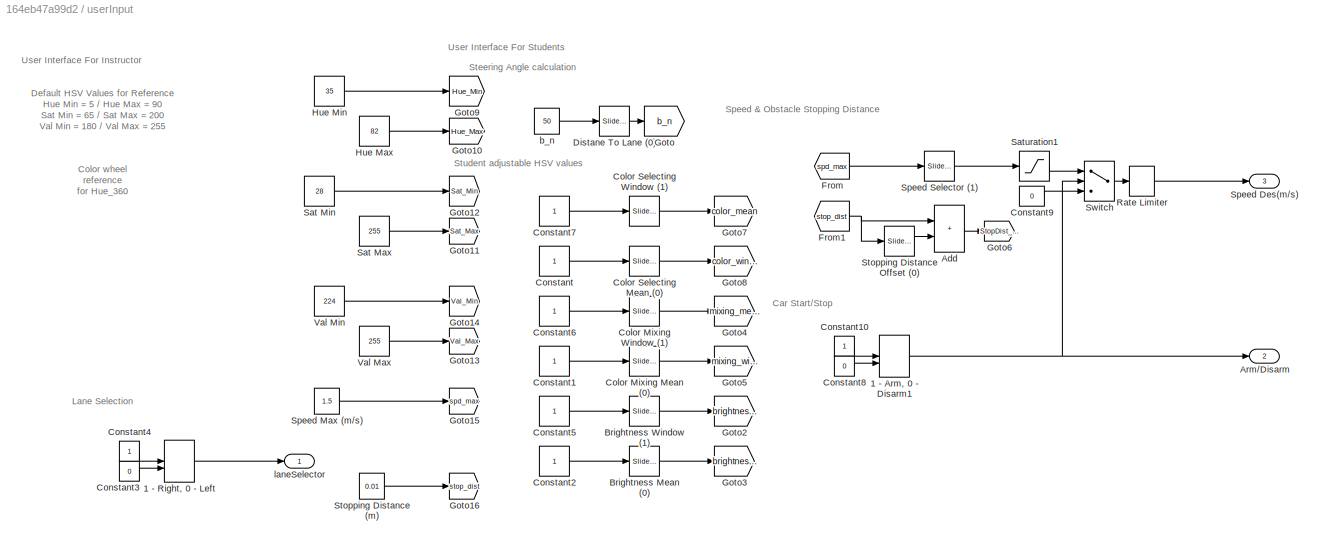
BLOCK [SubSystem] userInput
BLOCK [ManualSwitch] userInput/1 - Arm, 0 - Disarm1
  NameLocation = top
BLOCK [ManualSwitch] userInput/1 - Right, 0 - Left
  CurrentSetting = 0
  NameLocation = top
BLOCK [Sum] userInput/Add
  IconShape = rectangular
BLOCK [Outport] userInput/Arm//Disarm
  Port = 2
  VectorParamsAs1DForOutWhenUnconnected = off
BLOCK [Reference] userInput/Brightness Mean (0)  REF=simulink/Math
Operations/Slider
Gain
  SourceBlock = simulink/Math\nOperations/Slider\nGain
  SourceType = Slider Gain
BLOCK [Reference] userInput/Brightness Window (1)  REF=simulink/Math
Operations/Slider
Gain
  SourceBlock = simulink/Math\nOperations/Slider\nGain
  SourceType = Slider Gain
BLOCK [Reference] userInput/Color Mixing Mean (0)  REF=simulink/Math
Operations/Slider
Gain
  SourceBlock = simulink/Math\nOperations/Slider\nGain
  SourceType = Slider Gain
BLOCK [Reference] userInput/Color Mixing Window (1)  REF=simulink/Math
Operations/Slider
Gain
  SourceBlock = simulink/Math\nOperations/Slider\nGain
  SourceType = Slider Gain
BLOCK [Reference] userInput/Color Selecting Mean (0)  REF=simulink/Math
Operations/Slider
Gain
  SourceBlock = simulink/Math\nOperations/Slider\nGain
  SourceType = Slider Gain
BLOCK [Reference] userInput/Color Selecting Window (1)  REF=simulink/Math
Operations/Slider
Gain
  SourceBlock = simulink/Math\nOperations/Slider\nGain
  SourceType = Slider Gain
BLOCK [Constant] userInput/Constant
BLOCK [Constant] userInput/Constant1
BLOCK [Constant] userInput/Constant10
BLOCK [Constant] userInput/Constant2
BLOCK [Constant] userInput/Constant3
  Value = 0
BLOCK [Constant] userInput/Constant4
BLOCK [Constant] userInput/Constant5
BLOCK [Constant] userInput/Constant6
BLOCK [Constant] userInput/Constant7
BLOCK [Constant] userInput/Constant8
  Value = 0
BLOCK [Constant] userInput/Constant9
  Value = 0
BLOCK [Reference] userInput/Distane To Lane (0)   REF=simulink/Math
Operations/Slider
Gain
  SourceBlock = simulink/Math\nOperations/Slider\nGain
  SourceType = Slider Gain
BLOCK [From] userInput/From
  GotoTag = spd_max
  TagVisibility = global
BLOCK [From] userInput/From1
  GotoTag = stop_dist
  TagVisibility = global
BLOCK [Goto] userInput/Goto
  GotoTag = b_n
  TagVisibility = global
BLOCK [Goto] userInput/Goto10
  GotoTag = Hue_Max
  TagVisibility = global
BLOCK [Goto] userInput/Goto11
  GotoTag = Sat_Max
  TagVisibility = global
BLOCK [Goto] userInput/Goto12
  GotoTag = Sat_Min
  TagVisibility = global
BLOCK [Goto] userInput/Goto13
  GotoTag = Val_Max
  TagVisibility = global
BLOCK [Goto] userInput/Goto14
  GotoTag = Val_Min
  TagVisibility = global
BLOCK [Goto] userInput/Goto15
  GotoTag = spd_max
  TagVisibility = global
BLOCK [Goto] userInput/Goto16
  GotoTag = stop_dist
  TagVisibility = global
BLOCK [Goto] userInput/Goto2
  GotoTag = brightness_mean
  TagVisibility = global
BLOCK [Goto] userInput/Goto3
  GotoTag = brightness_window
  TagVisibility = global
BLOCK [Goto] userInput/Goto4
  GotoTag = mixing_mean
  TagVisibility = global
BLOCK [Goto] userInput/Goto5
  GotoTag = mixing_window
  TagVisibility = global
BLOCK [Goto] userInput/Goto6
  GotoTag = StopDist_des
  TagVisibility = global
BLOCK [Goto] userInput/Goto7
  GotoTag = color_mean
  TagVisibility = global
BLOCK [Goto] userInput/Goto8
  GotoTag = color_window
  TagVisibility = global
BLOCK [Goto] userInput/Goto9
  GotoTag = Hue_Min
  TagVisibility = global
BLOCK [Constant] userInput/Hue Max
  Value = 82
BLOCK [Constant] userInput/Hue Min
  Value = 35
BLOCK [RateLimiter] userInput/Rate Limiter
  FallingSlewLimit = -Inf
  SampleTimeMode = inherited
BLOCK [Constant] userInput/Sat Max
  Value = 255
BLOCK [Constant] userInput/Sat Min
  Value = 28
BLOCK [Saturate] userInput/Saturation1
  LowerLimit = 0
  UpperLimit = 1
BLOCK [Outport] userInput/Speed Des(m//s)
  Port = 3
  VectorParamsAs1DForOutWhenUnconnected = off
BLOCK [Constant] userInput/Speed Max (m//s)
  Value = 1.5
BLOCK [Reference] userInput/Speed Selector (1)  REF=simulink/Math
Operations/Slider
Gain
  SourceBlock = simulink/Math\nOperations/Slider\nGain
  SourceType = Slider Gain
BLOCK [Constant] userInput/Stopping Distance (m)
  Value = 0.01
BLOCK [Reference] userInput/Stopping Distance Offset (0)  REF=simulink/Math
Operations/Slider
Gain
  SourceBlock = simulink/Math\nOperations/Slider\nGain
  SourceType = Slider Gain
BLOCK [Switch] userInput/Switch
  Criteria = u2 > Threshold
  InputSameDT = off
  SaturateOnIntegerOverflow = off
BLOCK [Constant] userInput/Val Max
  Value = 255
BLOCK [Constant] userInput/Val Min
  Value = 224
BLOCK [Constant] userInput/b_n
  Value = 50
BLOCK [Outport] userInput/laneSelector
  VectorParamsAs1DForOutWhenUnconnected = off
ANNOTATION (root): 1. Color threshold the CSI image and fit a linear polynomial in the binary. 2. Mask the binary onto the original CSI image to display the lane.
ANNOTATION (root): Operating Instructions: Go to Simulation/Model Configuration Parameters/Code Generation/Interface/ MEX-file Arguments and ensure the IP address (by default 192.168.2.xxx) matches the same sequence of numbers as the LCD on the QCar. If it does not please modify the IP address accordingly. On the Simulink model click Build->Connect->Run . The image processing functionality within this example requir...<+1665ch>
ANNOTATION (root): The following model is an example of adaptive cruise control with basic lane changing capabilities. The main sensors used for obstacle detection and lane keeping capabilities are the CSI cameras and Intel RealSense D435.
ANNOTATION (root): Self-Driving Car Research Studio Autonomous Driving
ANNOTATION (root): Automate the driving via adaptive cruise control (automatedDriving), reduce speed setpoint when turning, and then control speed based on feedback
ANNOTATION (root): Calculate car speed based on odometry
ANNOTATION (root): Capture CSI image, LIDAR and depth data
ANNOTATION (root): Manage the lighting based on system commands
ANNOTATION (root): Monitor Timing for 600Hz, 120Hz and 100Hz loops
ANNOTATION (root): QCar I/O
ANNOTATION (root): User Interface
ANNOTATION automatedDriving: Automated-Driving Module: This subsystem provides a speed setpoint based on obstacles detected, while also transitioning rates. The speed setpoint is set to the nominal speed, and scales down linearly to zero depending on nominal tracking distance and stop distance. Inputs: obstacleDistance (m) n/a : Distance to obstacle in meters steering (rad) n/a : Steering output from image processing in radia...<+401ch>
ANNOTATION basicQCarIO: basicQCarIO Module: This subsystem provides the core and basic I/O capabilities to read data from and write data to the QCar platform. The HIL Initialize block configures the IO settings, and the HIL Write and Read blocks are used for the actual IO. You can also monitor sample and communication times. Inputs: motorCmd (%, rad) n/a : Vector input for the motor drive command (percentage throttle) as...<+426ch>
ANNOTATION basicQCarIO: LEDs: 1. Back Left Amber 2. Back Right Amber 3. Front Left Amber 4. Front Right Amber 5. Brake Lights Red 6. Reverse White 7. Left Headlamps White 8. Right Headlamps White
ANNOTATION basicQCarIO: Command Conditioning
ANNOTATION basicQCarIO: Filtering
ANNOTATION basicQCarIO: HIL I/O
ANNOTATION basicSpeedEstimation: (Diff. pinion*pinion)/(Spur*Diff. spur)
ANNOTATION basicSpeedEstimation: speedEstimation Module: This subsystem converts the motor speed measurements in counts/s to a useful longitudinal car speed in m/s. Inputs: motorSpeed (counts/s) n/a : Drive motor speed measured using an encoder Outputs: longitudinalCarSpeed (m/s) n/a : The platform's longitudinal speed (along the front-rear axis direction)
ANNOTATION basicSpeedEstimation: Estimate car speed from motor encoder counts rate
ANNOTATION basicSpeedEstimation: v = 2*pi*r * omega (if omega is in rot/s) v = r * omega (if omega is in rad/s) r = 0.0342 m
ANNOTATION captureCSI: captureCSI Module: This subsystem outputs the RGB Image captured from the associated CSI device Outputs: RGB (uint8) : RGB Image [height, width, 3] new (bool) : Boolean flag that is high (1) when the data is new Usage: Double-click the Video Capture block and set the 'Device Identifier' parameter to the desired value. Also set the desired resolution and frame rate. Sample Rate: The sample rate for...<+184ch>
ANNOTATION captureCSI: Capture CSI RGB Information at 30 fps, 820 x 410
ANNOTATION captureDepth: Depth Capture Module: This subsystem outputs the RGB and Depth Images captured from the Intel Realsense device Outputs: Depth Data (m) : Depth Data [height, width] Depth New? (bool) : Boolean flag that is high (1) when the data is new Usage: Connect the New? ports to the Enable/Trigger port of Enabled/Triggered subsystems that contain your code when using the image data. Sample Rate: The sample ra...<+190ch>
ANNOTATION captureDepth: Capture Realsense Depth Information at 30 fps, 640 x 480
ANNOTATION colorThresholdingHSV: HSV-Color Thresholding Module: This subsystem thresholds a given RGB image based on the desired colour and hue Inputs: imageRGB (uint8) {0,255} : Input RGB Image to be thresholded desiredHue (int) {-1}U{0,360} : Desired Hue to threshold around (provided in the 0-360 degree range, see the color wheel for hue selection) Set the desired hue to -1 if you are interested in thresholding for white [Sat_m...<+731ch>
ANNOTATION colorThresholdingHSV: Generate the thresholded binary
ANNOTATION colorThresholdingHSV: Transform RGB Image to an HSV one
ANNOTATION indicatorAndLamps: Indicators and Lamps Module: This subsystem outputs the correct state for the 4 indicator LEDs and lamp LEDs based on the motor drive and steering commands for the QCar platform. Inputs: motorCmd (%, rad) n/a : Vector input for the motor drive command (percentage throttle) as well as steering command (in rad) Outputs: indicatorsAndLamps (%) {0,1} : Percentage brightness command sent to the 8 LEDs ...<+388ch>
ANNOTATION indicatorAndLamps: Turn Indicators: # Longditudal Lateral Color 1 Rear Left Amber 2 Rear Right Amber 3 Front Left Amber 4 Front Right Amber Lamps: # Longditudal Lateral Color 5 Rear Left Red 6 Rear Right Red 7 Front Left White 8 Front Right White
ANNOTATION indicatorAndLamps: Braking Lamps Logic: Determine if the user is deliberately and actively braking (and ignore joystick jitter and noise)
ANNOTATION indicatorAndLamps: Indicator Logic:
ANNOTATION indicatorAndLamps: LED states
ANNOTATION monitorTiming : moniorTiming Module: This subsystem outputs the sample time and computation time of the model. Outputs: sampleTime (s) n/a : Sample time (unfiltered and filtered) in seconds. computationTime (s) n/a : Computation time (unfiltered and filtered) in seconds. Usage: Compare the Sample Time (s) output to a constant (qc_get_step_size) to monitor whether or not the desired sample time is being achieved. ...<+145ch>
ANNOTATION monitorTiming : Timing Performance
ANNOTATION monitorTiming 1: moniorTiming Module: This subsystem outputs the sample time and computation time of the model. Outputs: sampleTime (s) n/a : Sample time (unfiltered and filtered) in seconds. computationTime (s) n/a : Computation time (unfiltered and filtered) in seconds. Usage: Compare the Sample Time (s) output to a constant (qc_get_step_size) to monitor whether or not the desired sample time is being achieved. ...<+145ch>
ANNOTATION monitorTiming 1: Timing Performance
ANNOTATION monitorTiming 2: moniorTiming Module: This subsystem outputs the sample time and computation time of the model. Outputs: sampleTime (s) n/a : Sample time (unfiltered and filtered) in seconds. computationTime (s) n/a : Computation time (unfiltered and filtered) in seconds. Usage: Compare the Sample Time (s) output to a constant (qc_get_step_size) to monitor whether or not the desired sample time is being achieved. ...<+145ch>
ANNOTATION monitorTiming 2: Timing Performance
ANNOTATION obstacleDetection: obstacleDetection This subsystem calculates an obstacle distance based on a steering angle command and a source depth image. Inputs: imageBinary (uint8) {0,255} : Binary Image (0 or 255 and no other value) representing the thresholding output steering (double) {} : Angle in rad representing a desired heading. Outputs: imageDepthForDisplay (uint8) {0,255} : Scaled RGB Image with mask of the lane cu...<+412ch>
ANNOTATION speedController: speedController Module: This subsystem provides a general speed controller built as a combination of a feedforward and feedback controllers. Inputs: desiredSpeed (m/s) n/a : Speed command that the controller will try to obtain. measuredSpeed (m/s) n/a : Speed measurement arm (bool) {0,1} : Binary input used to reset the integral term of the feedback controller Outputs: throttleCmd (%) n/a : Percen...<+289ch>
ANNOTATION speedController: Feedback
ANNOTATION speedController: Feedforward
ANNOTATION steeringCalculation: steeringCalculation This subsystem generates the desired sterring command (rad) based on the lane selector and the binary image from the colour thresholding subsystem. Inputs: imageBinary (uint8) {0,255} : Binary Image (0 or 255 and no other value) representing the thresholding output imageSize (double) [{120,2464} {160,3280}] : A vector [n,m] which contains the image size in the row, column forma...<+900ch>
ANNOTATION turnSpeedHandling: turnSpeedHandling Module: This subsystem provides a speed reduction when steering, so as to prevent skidding. Inputs: enable (bool) {0,1} : Binary enable input systemCommand (m/s, rad) n/a : Vector input for the speed command (m/s) as well as steering command (in rad) Outputs: desiredSpeed (m/s) n/a : Desired speed command to be sent to a controller steering (rad) n/a : Desired steering command to...<+316ch>
ANNOTATION turnSpeedHandling: Steering-based speed cmd reduction
ANNOTATION userInput: Default HSV Values for Reference Hue Min = 5 / Hue Max = 90 Sat Min = 65 / Sat Max = 200 Val Min = 180 / Val Max = 255
ANNOTATION userInput: Car Start/Stop
ANNOTATION userInput: Color wheel reference for Hue_360
ANNOTATION userInput: Lane Selection
ANNOTATION userInput: Speed & Obstacle Stopping Distance
ANNOTATION userInput: Steering Angle calculation
ANNOTATION userInput: Student adjustable HSV values
ANNOTATION userInput: User Interface For Instructor
ANNOTATION userInput: User Interface For Students
LINE Bias1:1 -> Saturation:1
LINE Constant1:1 -> turnSpeedHandling:2
LINE Display Depth/Channel:1 -> Display Depth/Video Display:1
LINE Display Depth/Image:1 -> Display Depth/Channel:1
LINE Display RGB/Channel:1 -> Display RGB/Video Display:1
LINE Display RGB/Image:1 -> Display RGB/Channel:1
LINE From:1 -> obstacleDetection:3
LINE Gain:1 -> Bias1:1
NET MATLAB Function:1 -> RGB Image Pre-Proccessing:1, colorThresholdingHSV:1
LINE MATLAB Function:2 -> steeringCalculation:2
LINE MinDist (m):1 -> obstacleDetection:4
LINE Mux1:1 -> Rate Transition3:1
LINE Mux2:1 -> Rate Transition4:1
LINE Mux3:1 -> Scope:1
NET Mux:1 -> basicQCarIO:1, indicatorAndLamps:1
LINE RGB Image Pre-Proccessing/Channel:1 -> RGB Image Pre-Proccessing/Video Display:1
LINE RGB Image Pre-Proccessing/Image:1 -> RGB Image Pre-Proccessing/Channel:1
LINE Rate Transition1:1 -> automatedDriving:1
LINE Rate Transition2:1 -> obstacleDetection:2
LINE Rate Transition3:1 -> Scope:3
LINE Rate Transition4:1 -> Scope:2
NET Rate Transition5:1 -> MATLAB Function:3, steeringCalculation:3
LINE Rate Transition:1 -> automatedDriving:2
LINE Round:1 -> Rate Transition5:1
LINE Saturation:1 -> Round:1
LINE Selector:1 -> Subtract:1
LINE Subtract:1 -> Gain:1
LINE automatedDriving/Constant2:1 -> automatedDriving/MATLAB Function:3
LINE automatedDriving/Constant:1 -> automatedDriving/MATLAB Function:2
NET automatedDriving/MATLAB Function:1 -> automatedDriving/Mux1:1, automatedDriving/Scope:1
LINE automatedDriving/Mux1:1 -> automatedDriving/systemCommand (m//s, rad) [2]:1
LINE automatedDriving/nominalSpeed (m//s):1 -> automatedDriving/MATLAB Function:4
NET automatedDriving/obstacleDistance (m):1 -> automatedDriving/MATLAB Function:1, automatedDriving/Scope:2
NET automatedDriving/steering (rad):1 -> automatedDriving/Mux1:2, automatedDriving/Scope2:1
NET automatedDriving:1 -> Selector:1, turnSpeedHandling:1
LINE basicQCarIO/Constant1:1 -> basicQCarIO/Second-Order Low-Pass Filter:3
LINE basicQCarIO/Constant2:1 -> basicQCarIO/Second-Order Low-Pass Filter:2
LINE basicQCarIO/Constant3:1 -> basicQCarIO/Second-Order Low-Pass Filter1:3
LINE basicQCarIO/Constant4:1 -> basicQCarIO/Second-Order Low-Pass Filter1:2
LINE basicQCarIO/Constant5:1 -> basicQCarIO/Second-Order Low-Pass Filter2:3
LINE basicQCarIO/Constant6:1 -> basicQCarIO/Second-Order Low-Pass Filter2:2
LINE basicQCarIO/Demux:1 -> basicQCarIO/direction convention:1
LINE basicQCarIO/Demux:2 -> basicQCarIO/Gain:1
LINE basicQCarIO/Gain:1 -> basicQCarIO/Steering Bias:1
NET basicQCarIO/HIL Read Timebase:1 -> basicQCarIO/Second-Order Low-Pass Filter2:1, basicQCarIO/Second-Order Low-Pass Filter2:4
NET basicQCarIO/HIL Read Timebase:2 -> basicQCarIO/Second-Order Low-Pass Filter1:1, basicQCarIO/Second-Order Low-Pass Filter1:4
LINE basicQCarIO/HIL Read Timebase:3 -> basicQCarIO/Unwrap 2^24:1
LINE basicQCarIO/Mux:1 -> basicQCarIO/HIL Write:3
NET basicQCarIO/Second-Order Low-Pass Filter1:1 -> basicQCarIO/Scope:2, basicQCarIO/batteryVoltage (V) [1]:1
LINE basicQCarIO/Second-Order Low-Pass Filter1:2 -> basicQCarIO/Terminator1:1
NET basicQCarIO/Second-Order Low-Pass Filter2:1 -> basicQCarIO/Scope:1, basicQCarIO/motorCurrent (A) [1]:1
LINE basicQCarIO/Second-Order Low-Pass Filter2:2 -> basicQCarIO/Terminator2:1
LINE basicQCarIO/Second-Order Low-Pass Filter:1 -> basicQCarIO/Terminator:1
LINE basicQCarIO/Second-Order Low-Pass Filter:2 -> basicQCarIO/motorSpeed (counts//s) [1]:1
LINE basicQCarIO/Steering Bias:1 -> basicQCarIO/Mux:1
NET basicQCarIO/Unwrap 2^24:1 -> basicQCarIO/Second-Order Low-Pass Filter:1, basicQCarIO/Second-Order Low-Pass Filter:4
LINE basicQCarIO/coast ON:1 -> basicQCarIO/HIL Write:2
LINE basicQCarIO/command saturation:1 -> basicQCarIO/HIL Write:1
LINE basicQCarIO/direction convention:1 -> basicQCarIO/command saturation:1
LINE basicQCarIO/indicatorAndLamps (bool) [8]:1 -> basicQCarIO/Mux:2
LINE basicQCarIO/motorCmd (%, rad) [2]:1 -> basicQCarIO/Demux:1
LINE basicQCarIO:1 -> Terminator:1
LINE basicQCarIO:2 -> Terminator2:1
LINE basicQCarIO:3 -> basicSpeedEstimation:1
LINE basicSpeedEstimation/counts to rotations:1 -> basicSpeedEstimation/gear ratios:1
LINE basicSpeedEstimation/gear ratios:1 -> basicSpeedEstimation/rot//s to rad//s:1
LINE basicSpeedEstimation/motorSpeed (counts//s):1 -> basicSpeedEstimation/counts to rotations:1
LINE basicSpeedEstimation/rot//s to rad//s:1 -> basicSpeedEstimation/wheel radius:1
LINE basicSpeedEstimation/wheel radius:1 -> basicSpeedEstimation/longitudinalCarSpeed (m//s):1
LINE basicSpeedEstimation:1 -> speedController:3
LINE captureCSI/Video Capture:1 -> captureCSI/imageRGB:1
LINE captureCSI/Video Capture:2 -> captureCSI/Scope:1
NET captureCSI:1 -> MATLAB Function:1, steeringCalculation:4
LINE captureDepth/Depth:1 -> captureDepth/imageDepth [360 x 640]:1
LINE captureDepth/Depth:2 -> captureDepth/Terminator2:1
LINE captureDepth/Depth:3 -> captureDepth/Terminator3:1
LINE captureDepth/Depth:4 -> captureDepth/new:1
LINE captureDepth/Video3D Initialize:1 -> captureDepth/Terminator4:1
LINE captureDepth:1 -> obstacleDetection:enable
LINE captureDepth:2 -> obstacleDetection:1
LINE colorThresholdingHSV/From1:1 -> colorThresholdingHSV/Subsystem:1
LINE colorThresholdingHSV/From2:1 -> colorThresholdingHSV/Subsystem:2
LINE colorThresholdingHSV/From3:1 -> colorThresholdingHSV/Subsystem:3
LINE colorThresholdingHSV/From4:1 -> colorThresholdingHSV/Subsystem:4
LINE colorThresholdingHSV/From5:1 -> colorThresholdingHSV/Subsystem:5
LINE colorThresholdingHSV/From6:1 -> colorThresholdingHSV/Subsystem:6
LINE colorThresholdingHSV/HSV Color Thresholding:1 -> colorThresholdingHSV/imageBinary:1
LINE colorThresholdingHSV/Image Transform:1 -> colorThresholdingHSV/HSV Color Thresholding:1
LINE colorThresholdingHSV/Subsystem/20%1:1 -> colorThresholdingHSV/Subsystem/Product1:1
LINE colorThresholdingHSV/Subsystem/20%2:1 -> colorThresholdingHSV/Subsystem/Product2:1
LINE colorThresholdingHSV/Subsystem/20%:1 -> colorThresholdingHSV/Subsystem/Product:1
NET colorThresholdingHSV/Subsystem/Add1:1 -> colorThresholdingHSV/Subsystem/Add2:1, colorThresholdingHSV/Subsystem/Subtract1:1
NET colorThresholdingHSV/Subsystem/Add2:1 -> colorThresholdingHSV/Subsystem/Display:1, colorThresholdingHSV/Subsystem/Gain7:1
LINE colorThresholdingHSV/Subsystem/Add3:1 -> colorThresholdingHSV/Subsystem/Gain2:1
NET colorThresholdingHSV/Subsystem/Add4:1 -> colorThresholdingHSV/Subsystem/Add5:1, colorThresholdingHSV/Subsystem/Subtract3:1
NET colorThresholdingHSV/Subsystem/Add5:1 -> colorThresholdingHSV/Subsystem/Display2:1, colorThresholdingHSV/Subsystem/Mux1:2
LINE colorThresholdingHSV/Subsystem/Add6:1 -> colorThresholdingHSV/Subsystem/Gain4:1
NET colorThresholdingHSV/Subsystem/Add7:1 -> colorThresholdingHSV/Subsystem/Add8:1, colorThresholdingHSV/Subsystem/Subtract5:1
NET colorThresholdingHSV/Subsystem/Add8:1 -> colorThresholdingHSV/Subsystem/Display4:1, colorThresholdingHSV/Subsystem/Mux1:3
LINE colorThresholdingHSV/Subsystem/Add:1 -> colorThresholdingHSV/Subsystem/Gain:1
LINE colorThresholdingHSV/Subsystem/From1:1 -> colorThresholdingHSV/Subsystem/Product2:2
LINE colorThresholdingHSV/Subsystem/From2:1 -> colorThresholdingHSV/Subsystem/Product4:2
LINE colorThresholdingHSV/Subsystem/From3:1 -> colorThresholdingHSV/Subsystem/Product1:2
LINE colorThresholdingHSV/Subsystem/From4:1 -> colorThresholdingHSV/Subsystem/Product5:2
LINE colorThresholdingHSV/Subsystem/From5:1 -> colorThresholdingHSV/Subsystem/Product:2
LINE colorThresholdingHSV/Subsystem/From:1 -> colorThresholdingHSV/Subsystem/Product3:2
LINE colorThresholdingHSV/Subsystem/Gain1:1 -> colorThresholdingHSV/Subsystem/Product5:1
NET colorThresholdingHSV/Subsystem/Gain2:1 -> colorThresholdingHSV/Subsystem/20%1:1, colorThresholdingHSV/Subsystem/Add4:1
LINE colorThresholdingHSV/Subsystem/Gain3:1 -> colorThresholdingHSV/Subsystem/Product4:1
NET colorThresholdingHSV/Subsystem/Gain4:1 -> colorThresholdingHSV/Subsystem/20%2:1, colorThresholdingHSV/Subsystem/Add7:1
LINE colorThresholdingHSV/Subsystem/Gain5:1 -> colorThresholdingHSV/Subsystem/Product3:1
LINE colorThresholdingHSV/Subsystem/Gain6:1 -> colorThresholdingHSV/Subsystem/Mux:1
LINE colorThresholdingHSV/Subsystem/Gain7:1 -> colorThresholdingHSV/Subsystem/Mux1:1
NET colorThresholdingHSV/Subsystem/Gain:1 -> colorThresholdingHSV/Subsystem/20%:1, colorThresholdingHSV/Subsystem/Add1:1
NET colorThresholdingHSV/Subsystem/Hue Max:1 -> colorThresholdingHSV/Subsystem/Add:2, colorThresholdingHSV/Subsystem/Subtract:1
NET colorThresholdingHSV/Subsystem/Hue Min:1 -> colorThresholdingHSV/Subsystem/Add:1, colorThresholdingHSV/Subsystem/Subtract:2
LINE colorThresholdingHSV/Subsystem/Mux1:1 -> colorThresholdingHSV/Subsystem/Saturation1:1
LINE colorThresholdingHSV/Subsystem/Mux:1 -> colorThresholdingHSV/Subsystem/Saturation:1
LINE colorThresholdingHSV/Subsystem/Product1:1 -> colorThresholdingHSV/Subsystem/Add4:2
LINE colorThresholdingHSV/Subsystem/Product2:1 -> colorThresholdingHSV/Subsystem/Add7:2
NET colorThresholdingHSV/Subsystem/Product3:1 -> colorThresholdingHSV/Subsystem/Add8:2, colorThresholdingHSV/Subsystem/Subtract5:2
NET colorThresholdingHSV/Subsystem/Product4:1 -> colorThresholdingHSV/Subsystem/Add5:2, colorThresholdingHSV/Subsystem/Subtract3:2
NET colorThresholdingHSV/Subsystem/Product5:1 -> colorThresholdingHSV/Subsystem/Add2:2, colorThresholdingHSV/Subsystem/Subtract1:2
LINE colorThresholdingHSV/Subsystem/Product:1 -> colorThresholdingHSV/Subsystem/Add1:2
NET colorThresholdingHSV/Subsystem/Sat Max:1 -> colorThresholdingHSV/Subsystem/Add3:2, colorThresholdingHSV/Subsystem/Subtract2:1
NET colorThresholdingHSV/Subsystem/Sat Min:1 -> colorThresholdingHSV/Subsystem/Add3:1, colorThresholdingHSV/Subsystem/Subtract2:2
LINE colorThresholdingHSV/Subsystem/Saturation1:1 -> colorThresholdingHSV/Subsystem/HSV Max:1
LINE colorThresholdingHSV/Subsystem/Saturation:1 -> colorThresholdingHSV/Subsystem/HSV Min:1
NET colorThresholdingHSV/Subsystem/Subtract1:1 -> colorThresholdingHSV/Subsystem/Display1:1, colorThresholdingHSV/Subsystem/Gain6:1
LINE colorThresholdingHSV/Subsystem/Subtract2:1 -> colorThresholdingHSV/Subsystem/Gain3:1
NET colorThresholdingHSV/Subsystem/Subtract3:1 -> colorThresholdingHSV/Subsystem/Display3:1, colorThresholdingHSV/Subsystem/Mux:2
LINE colorThresholdingHSV/Subsystem/Subtract4:1 -> colorThresholdingHSV/Subsystem/Gain5:1
NET colorThresholdingHSV/Subsystem/Subtract5:1 -> colorThresholdingHSV/Subsystem/Display5:1, colorThresholdingHSV/Subsystem/Mux:3
LINE colorThresholdingHSV/Subsystem/Subtract:1 -> colorThresholdingHSV/Subsystem/Gain1:1
NET colorThresholdingHSV/Subsystem/Val Max:1 -> colorThresholdingHSV/Subsystem/Add6:2, colorThresholdingHSV/Subsystem/Subtract4:1
NET colorThresholdingHSV/Subsystem/Val Min:1 -> colorThresholdingHSV/Subsystem/Add6:1, colorThresholdingHSV/Subsystem/Subtract4:2
NET colorThresholdingHSV/Subsystem:1 -> colorThresholdingHSV/Display1:1, colorThresholdingHSV/HSV Color Thresholding:2
NET colorThresholdingHSV/Subsystem:2 -> colorThresholdingHSV/Display2:1, colorThresholdingHSV/HSV Color Thresholding:3
LINE colorThresholdingHSV/imageRGB:1 -> colorThresholdingHSV/Image Transform:1
LINE colorThresholdingHSV:1 -> steeringCalculation:1
NET indicatorAndLamps/AND1:1 -> indicatorAndLamps/Mux:2, indicatorAndLamps/Mux:4
LINE indicatorAndLamps/AND2:1 -> indicatorAndLamps/Switch2:2
NET indicatorAndLamps/AND3:1 -> indicatorAndLamps/Mux:1, indicatorAndLamps/Mux:3
LINE indicatorAndLamps/Abs1:1 -> indicatorAndLamps/Subtract:1
LINE indicatorAndLamps/Abs:1 -> indicatorAndLamps/Subtract:2
LINE indicatorAndLamps/Compare To Constant1:1 -> indicatorAndLamps/AND2:2
LINE indicatorAndLamps/Compare To Constant2:1 -> indicatorAndLamps/Mux:6
LINE indicatorAndLamps/Compare To Constant3:1 -> indicatorAndLamps/One Shot:1
LINE indicatorAndLamps/Constant1:1 -> indicatorAndLamps/One Shot:3
LINE indicatorAndLamps/Constant2:1 -> indicatorAndLamps/One Shot:4
LINE indicatorAndLamps/Constant:1 -> indicatorAndLamps/One Shot:2
LINE indicatorAndLamps/Data Type Conversion1:1 -> indicatorAndLamps/indicatorsAndLamps (%) [8]:1
LINE indicatorAndLamps/Data Type Conversion2:1 -> indicatorAndLamps/Switch2:3
NET indicatorAndLamps/Data Type Conversion:1 -> indicatorAndLamps/AND1:2, indicatorAndLamps/AND3:2
NET indicatorAndLamps/Demux:1 -> indicatorAndLamps/Abs1:1, indicatorAndLamps/Compare To Constant1:1, indicatorAndLamps/Compare To Constant2:1, indicatorAndLamps/Memory:1
NET indicatorAndLamps/Demux:2 -> indicatorAndLamps/Left Steering Limit:1, indicatorAndLamps/Right Steering Limit:1
LINE indicatorAndLamps/Left Steering Limit:1 -> indicatorAndLamps/AND3:1
LINE indicatorAndLamps/Light Off:1 -> indicatorAndLamps/Data Type Conversion2:1
LINE indicatorAndLamps/Memory:1 -> indicatorAndLamps/Abs:1
LINE indicatorAndLamps/Mux:1 -> indicatorAndLamps/Data Type Conversion1:1
LINE indicatorAndLamps/One Shot:1 -> indicatorAndLamps/AND2:1
LINE indicatorAndLamps/Pulsing Light:1 -> indicatorAndLamps/Data Type Conversion:1
LINE indicatorAndLamps/Right Steering Limit:1 -> indicatorAndLamps/AND1:1
NET indicatorAndLamps/Steady Light:1 -> indicatorAndLamps/Mux:7, indicatorAndLamps/Mux:8, indicatorAndLamps/Switch2:1
LINE indicatorAndLamps/Subtract:1 -> indicatorAndLamps/Compare To Constant3:1
LINE indicatorAndLamps/Switch2:1 -> indicatorAndLamps/Mux:5
LINE indicatorAndLamps/motorCmd (%, rad) [2]:1 -> indicatorAndLamps/Demux:1
LINE indicatorAndLamps:1 -> basicQCarIO:2
LINE maxDist (m):1 -> obstacleDetection:5
LINE monitorTiming /Computation Time:1 -> monitorTiming /computationTime (s):1
LINE monitorTiming /Constant:1 -> monitorTiming /Mux:2
LINE monitorTiming /Mux:1 -> monitorTiming /sampleTime (s):1
LINE monitorTiming /Sample Time:1 -> monitorTiming /Mux:1
LINE monitorTiming 1/Computation Time:1 -> monitorTiming 1/computationTime (s):1
LINE monitorTiming 1/Constant:1 -> monitorTiming 1/Mux:2
LINE monitorTiming 1/Mux:1 -> monitorTiming 1/sampleTime (s):1
LINE monitorTiming 1/Sample Time:1 -> monitorTiming 1/Mux:1
LINE monitorTiming 1:1 -> Mux2:1
LINE monitorTiming 1:2 -> Mux2:2
LINE monitorTiming 2/Computation Time:1 -> monitorTiming 2/computationTime (s):1
LINE monitorTiming 2/Constant:1 -> monitorTiming 2/Mux:2
LINE monitorTiming 2/Mux:1 -> monitorTiming 2/sampleTime (s):1
LINE monitorTiming 2/Sample Time:1 -> monitorTiming 2/Mux:1
LINE monitorTiming 2:1 -> Mux1:1
LINE monitorTiming 2:2 -> Mux1:2
LINE monitorTiming :1 -> Mux3:1
LINE monitorTiming :2 -> Mux3:2
LINE obstacleDetection/AND:1 -> obstacleDetection/Multiply:1
LINE obstacleDetection/Compare1:1 -> obstacleDetection/AND:2
LINE obstacleDetection/Compare:1 -> obstacleDetection/AND:1
LINE obstacleDetection/Constant2:1 -> obstacleDetection/Compare1:2
LINE obstacleDetection/Constant3:1 -> obstacleDetection/Draw Lines Module:3
LINE obstacleDetection/Convert ro real world units:1 -> obstacleDetection/distance (m):1
LINE obstacleDetection/Data Type Conversion:1 -> obstacleDetection/Selector:1
LINE obstacleDetection/Desired Stoping Distance:1 -> obstacleDetection/Compare:2
LINE obstacleDetection/Divide:1 -> obstacleDetection/Draw Lines Module:2
LINE obstacleDetection/Draw Lines Module:1 -> obstacleDetection/imageDepthForDisplay:1
LINE obstacleDetection/Gain1:1 -> obstacleDetection/MATLAB Function:2
LINE obstacleDetection/Gain2:1 -> obstacleDetection/MATLAB Function:3
LINE obstacleDetection/Gain:1 -> obstacleDetection/Data Type Conversion:1
NET obstacleDetection/MATLAB Function:1 -> obstacleDetection/Compare1:1, obstacleDetection/Compare:1, obstacleDetection/Multiply:2
LINE obstacleDetection/MaxDistance:1 -> obstacleDetection/Gain2:1
LINE obstacleDetection/MinDistance:1 -> obstacleDetection/Gain1:1
LINE obstacleDetection/Multiply:1 -> obstacleDetection/Convert ro real world units:1
LINE obstacleDetection/Selector:1 -> obstacleDetection/Draw Lines Module:1
LINE obstacleDetection/Steering based image subselector:1 -> obstacleDetection/Divide:1
LINE obstacleDetection/Steering based image subselector:2 -> obstacleDetection/MATLAB Function:1
NET obstacleDetection/imageDepth:1 -> obstacleDetection/Gain:1, obstacleDetection/Steering based image subselector:1
LINE obstacleDetection/scale:1 -> obstacleDetection/Divide:2
LINE obstacleDetection/steering (rad):1 -> obstacleDetection/Steering based image subselector:2
LINE obstacleDetection:1 -> Display Depth:1
LINE obstacleDetection:2 -> Rate Transition1:1
LINE speedController/Add1:1 -> speedController/Multiply2:1
LINE speedController/Add:1 -> speedController/Add1:2
LINE speedController/Compare To Zero:1 -> speedController/Integrator1:2
LINE speedController/Integrator1:1 -> speedController/Add:2
LINE speedController/Kff (% // m//s):1 -> speedController/Add1:1
LINE speedController/Ki (% // m) :1 -> speedController/Integrator1:1
LINE speedController/Kp (% // m//s):1 -> speedController/Add:1
NET speedController/Multiply1:1 -> speedController/Compare To Zero:1, speedController/Kff (% // m//s):1, speedController/Scope:1, speedController/Sum:1
LINE speedController/Multiply2:1 -> speedController/throttleCmd (%):1
NET speedController/Multiply:1 -> speedController/Scope:2, speedController/Sum:2
NET speedController/Sum:1 -> speedController/Ki (% // m) :1, speedController/Kp (% // m//s):1
NET speedController/arm (0,1):1 -> speedController/Multiply1:2, speedController/Multiply2:2, speedController/Multiply:2
LINE speedController/command saturation:1 -> speedController/Multiply1:1
LINE speedController/desiredSpeed (m//s):1 -> speedController/command saturation:1
LINE speedController/measuredSpeed (m//s):1 -> speedController/Multiply:1
LINE speedController:1 -> Mux:1
LINE steeringCalculation/Bias:1 -> steeringCalculation/Combine images:5
LINE steeringCalculation/Combine images:1 -> steeringCalculation/imageRGBForDisplay:1
LINE steeringCalculation/Constant3:1 -> steeringCalculation/MATLAB Function:4
LINE steeringCalculation/Constant4:1 -> steeringCalculation/Combine images:4
LINE steeringCalculation/Find slope and intercept:1 -> steeringCalculation/MATLAB Function:1
LINE steeringCalculation/Find slope and intercept:2 -> steeringCalculation/MATLAB Function:2
LINE steeringCalculation/Floor:1 -> steeringCalculation/Bias:1
LINE steeringCalculation/From:1 -> steeringCalculation/Manual Switch:2
LINE steeringCalculation/Gain:1 -> steeringCalculation/Floor:1
LINE steeringCalculation/MATLAB Function:1 -> steeringCalculation/Steering Saturation1:1
LINE steeringCalculation/Manual Switch:1 -> steeringCalculation/MATLAB Function:7
LINE steeringCalculation/Quick Resize1:1 -> steeringCalculation/Combine images:3
LINE steeringCalculation/Quick Resize:1 -> steeringCalculation/Combine images:2
LINE steeringCalculation/Steering Saturation1:1 -> steeringCalculation/steering (rad):1
LINE steeringCalculation/b_n:1 -> steeringCalculation/Manual Switch:1
NET steeringCalculation/imageBinary:1 -> steeringCalculation/Find slope and intercept:1, steeringCalculation/Quick Resize:1
LINE steeringCalculation/imageRGB:1 -> steeringCalculation/Quick Resize1:1
NET steeringCalculation/imageSize:1 -> steeringCalculation/Find slope and intercept:3, steeringCalculation/MATLAB Function:3
NET steeringCalculation/laneSelector:1 -> steeringCalculation/Combine images:1, steeringCalculation/Find slope and intercept:2, steeringCalculation/MATLAB Function:5
LINE steeringCalculation/lookupRow:1 -> steeringCalculation/Gain:1
LINE steeringCalculation/m_n:1 -> steeringCalculation/MATLAB Function:6
LINE steeringCalculation:1 -> Display RGB:1
NET steeringCalculation:2 -> Rate Transition2:1, Rate Transition:1
LINE turnSpeedHandling/Constant:1 -> turnSpeedHandling/Square:2
LINE turnSpeedHandling/Cos:1 -> turnSpeedHandling/Square:1
NET turnSpeedHandling/Demux1:1 -> turnSpeedHandling/Product:1, turnSpeedHandling/Scope:1, turnSpeedHandling/Switch:3
NET turnSpeedHandling/Demux1:2 -> turnSpeedHandling/Cos:1, turnSpeedHandling/steering (rad):1
LINE turnSpeedHandling/Product:1 -> turnSpeedHandling/Switch:1
LINE turnSpeedHandling/Saturation:1 -> turnSpeedHandling/Product:2
LINE turnSpeedHandling/Square:1 -> turnSpeedHandling/Saturation:1
NET turnSpeedHandling/Switch:1 -> turnSpeedHandling/Scope:2, turnSpeedHandling/desiredSpeed (m//s):1
LINE turnSpeedHandling/enable:1 -> turnSpeedHandling/Switch:2
LINE turnSpeedHandling/systemCommand (m//s, rad) [2]:1 -> turnSpeedHandling/Demux1:1
NET turnSpeedHandling:1 -> Subtract:2, speedController:2
LINE turnSpeedHandling:2 -> Mux:2
NET userInput/1 - Arm, 0 - Disarm1:1 -> userInput/Arm//Disarm:1, userInput/Switch:2
LINE userInput/1 - Right, 0 - Left:1 -> userInput/laneSelector:1
LINE userInput/Add:1 -> userInput/Goto6:1
LINE userInput/Brightness Mean (0):1 -> userInput/Goto3:1
LINE userInput/Brightness Window (1):1 -> userInput/Goto2:1
LINE userInput/Color Mixing Mean (0):1 -> userInput/Goto5:1
LINE userInput/Color Mixing Window (1):1 -> userInput/Goto4:1
LINE userInput/Color Selecting Mean (0):1 -> userInput/Goto8:1
LINE userInput/Color Selecting Window (1):1 -> userInput/Goto7:1
LINE userInput/Constant10:1 -> userInput/1 - Arm, 0 - Disarm1:1
LINE userInput/Constant1:1 -> userInput/Color Mixing Mean (0):1
LINE userInput/Constant2:1 -> userInput/Brightness Mean (0):1
LINE userInput/Constant3:1 -> userInput/1 - Right, 0 - Left:2
LINE userInput/Constant4:1 -> userInput/1 - Right, 0 - Left:1
LINE userInput/Constant5:1 -> userInput/Brightness Window (1):1
LINE userInput/Constant6:1 -> userInput/Color Mixing Window (1):1
LINE userInput/Constant7:1 -> userInput/Color Selecting Window (1):1
LINE userInput/Constant8:1 -> userInput/1 - Arm, 0 - Disarm1:2
LINE userInput/Constant9:1 -> userInput/Switch:3
LINE userInput/Constant:1 -> userInput/Color Selecting Mean (0):1
LINE userInput/Distane To Lane (0) :1 -> userInput/Goto:1
NET userInput/From1:1 -> userInput/Add:1, userInput/Stopping Distance Offset (0):1
LINE userInput/From:1 -> userInput/Speed Selector (1):1
LINE userInput/Hue Max:1 -> userInput/Goto10:1
LINE userInput/Hue Min:1 -> userInput/Goto9:1
LINE userInput/Rate Limiter:1 -> userInput/Speed Des(m//s):1
LINE userInput/Sat Max:1 -> userInput/Goto11:1
LINE userInput/Sat Min:1 -> userInput/Goto12:1
LINE userInput/Saturation1:1 -> userInput/Switch:1
LINE userInput/Speed Max (m//s):1 -> userInput/Goto15:1
LINE userInput/Speed Selector (1):1 -> userInput/Saturation1:1
LINE userInput/Stopping Distance (m):1 -> userInput/Goto16:1
LINE userInput/Stopping Distance Offset (0):1 -> userInput/Add:2
LINE userInput/Switch:1 -> userInput/Rate Limiter:1
LINE userInput/Val Max:1 -> userInput/Goto13:1
LINE userInput/Val Min:1 -> userInput/Goto14:1
LINE userInput/b_n:1 -> userInput/Distane To Lane (0) :1
NET userInput:1 -> MATLAB Function:2, steeringCalculation:5
LINE userInput:2 -> speedController:1
LINE userInput:3 -> automatedDriving:3
note: NET lines group one-source signal fan-out (src -> all destinations, sorted); 1:1 wires keep LINE
CHART MATLAB Function states=1 transitions=1
  STATE_LABEL 'eML_blk_kernel()'
  STATE_LABEL 'SCRIPT:\nfunction [imageToThreshold, imageSize]  = imageSelector(imageRGB, laneSelector, lookupRow)\n\n[ROW, COL, ~] = size(imageRGB);\n% imageToThreshold = uint8(zeros(ROW/2+1,COL/3,3));\nif laneSelector\n    imageToThreshold = imageRGB(round(ROW/2)+1:ROW, round(COL*(2/3)) + 1:COL, :);\nelse\n    imageToThreshold = imageRGB(round(ROW/2)+1:ROW, 1:round(COL/3), :);\nend\nimageToThreshold(1: round(ROW/2) - (R...<+79ch>'
CHART obstacleDetection/Draw Lines Module states=1 transitions=1
  STATE_LABEL 'eML_blk_kernel()'
  STATE_LABEL 'SCRIPT:\nfunction img_out = drawLines(img_in, pts, color)\n\n% Draw lines connecting the points using the provided color\n\n% Inputs:\n% img_in    : Input RGB Image (size = m by n)\n% pts       : p x-y pairs of points (px) where markers are to be drawn\n% color     : 1x3 matrix of RGB color values for each marker\n\n% Outputs:\n% img_out   : Output RGB Image with the markers drawn in (size = m by n)\n\n%% Init...<+879ch>'
CHART steeringCalculation/Find slope
and intercept states=1 transitions=1
  STATE_LABEL 'eML_blk_kernel()'
  STATE_LABEL 'SCRIPT:\nfunction [m, b] = linearPolyFit(Binary, laneSelector, imageSize)\n\n% find the shape of the incoming image\n[ROW, ~] = size(Binary);\n\n% find row, col pairs of points where pixel value is bright\n[rows, cols] = find(Binary(ROW - imageSize(1) + 1:end, :) > 0);\n\n% x is coloumns, y is max_row - rows\nif laneSelector\n    x = imageSize(2) - cols;\nelse\n    x = cols;\nend\n\ny = imageSize(1) - rows;\n\n% fi...<+159ch>'
CHART steeringCalculation/MATLAB Function states=1 transitions=1
  STATE_LABEL 'eML_blk_kernel()'
  STATE_LABEL 'SCRIPT:\nfunction steering = fcn(m, b, binaryShape, gain, laneSelector, m_n, b_n)\n \n% y = mx + b\n\ncurrent_x = (binaryShape(1) - b)/m;\nnominal_x = (binaryShape(1) - b_n)/m_n;\nif laneSelector\n    steering = -gain*(nominal_x - current_x)/binaryShape(2);\nelse\n    steering = gain*(nominal_x - current_x)/binaryShape(2);\nend'
CHART steeringCalculation/Quick Resize states=1 transitions=1
  STATE_LABEL 'eML_blk_kernel()'
  STATE_LABEL 'SCRIPT:\nfunction y = quickResize(u)\n\nscale = 3;\n    if length(size(u)) == 3\n        y = u(1:scale:end, 1:scale:end, :);\n    else\n        y = u(1:scale:end, 1:scale:end);\n    end\n\nend'
CHART steeringCalculation/Combine images states=1 transitions=1
  STATE_LABEL 'eML_blk_kernel()'
  STATE_LABEL 'SCRIPT:\nfunction y = laneMask(laneSelector, Binary, RGB, enable, lookupRow)\n\ny = RGB;\n[ROW, COL, ~] = size(y);\n[binRow, ~] = size(Binary);\nbinarySection = Binary(binRow-(length(lookupRow:ROW))+1:binRow,:);\nif enable\n    if laneSelector\n        section = RGB(lookupRow:ROW, COL*(2/3) + 1:COL, :);\n        y(lookupRow:ROW, int16(COL*(2/3)) + 1:COL, 1) = ((255 - binarySection)/255).*section(:,:,1) + (b...<+614ch>'
CHART obstacleDetection/MATLAB Function states=1 transitions=1
  STATE_LABEL 'eML_blk_kernel()'
  STATE_LABEL 'SCRIPT:\nfunction y = calculateDistance(depth, minDistance, maxDistance)\n\n% This function drops depth data when outside the minDistance:maxDistance\n% bounds and then averages the result. \n\n% u_flat = reshape(depth, 1, []);\n% u_flat(u_flat < minDistance) = [];\n% u_flat(u_flat > maxDistance) = [];\n% y = mean(mean(u_flat));\n\n\nu_flat = depth(depth <maxDistance);\n\nu_flat  = depth(u_flat>minDistance);\n\ny...<+16ch>'
CHART obstacleDetection/Steering based 
image subselector states=1 transitions=1
  STATE_LABEL 'eML_blk_kernel()'
  STATE_LABEL 'SCRIPT:\nfunction [pts, region] = drawBox(depth, steering)\n% Input: 640 x 360\nmark = round(320 - (steering*260/0.5));\nstarting_index = mark+1-60;\nregion = double(depth(121:240, starting_index : starting_index + 119));\npts = [ 101, mark+1-60; 101, mark+60; 220, mark+60; 220, mark+1-60; 101, mark+1-60];\n'
CHART steeringCalculation/Quick Resize1 states=1 transitions=1
  STATE_LABEL 'eML_blk_kernel()'
  STATE_LABEL 'SCRIPT:\nfunction y = quickResize(u)\n\nscale = 3;\n    if length(size(u)) == 3\n        y = u(1:scale:end, 1:scale:end, :);\n    else\n        y = u(1:scale:end, 1:scale:end);\n    end\n\nend'
CHART automatedDriving/MATLAB Function states=1 transitions=1
  STATE_LABEL 'eML_blk_kernel()'
  STATE_LABEL 'SCRIPT:\nfunction speed_cmd = adaptive_cruise_control(obstacle_distance, stop_distance, nominal_tracking_distance, nominal_speed)\n\nspeed_cmd = nominal_speed;\n\nif obstacle_distance < stop_distance\n    speed_cmd = 0;\n    \nelseif obstacle_distance < nominal_tracking_distance\n    speed_cmd = nominal_speed/(nominal_tracking_distance-stop_distance)*obstacle_distance...\n              - nominal_speed/(nomi...<+57ch>'
CHART  states=0 transitions=0
CHART  states=0 transitions=0
CHART  states=0 transitions=0
CHART  states=0 transitions=0
CHART  states=0 transitions=0
CHART  states=0 transitions=0
CHART  states=0 transitions=0
CHART  states=0 transitions=0
CHART  states=0 transitions=0
CHART  states=0 transitions=0
